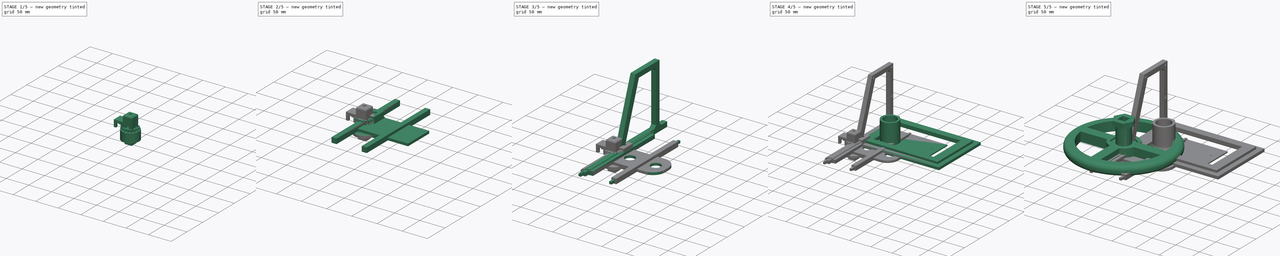
[diagram: build sequence overview — one tinted view per stage of 5, left to right]
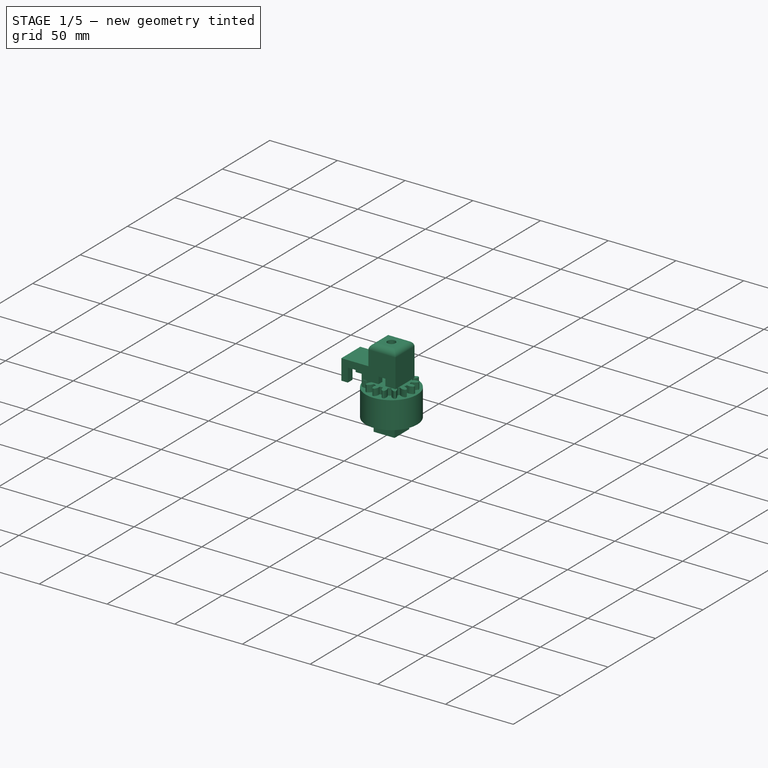
[diagram: stage 1 of 5 — iso view after this stage's code; geometry added in this stage tinted green]
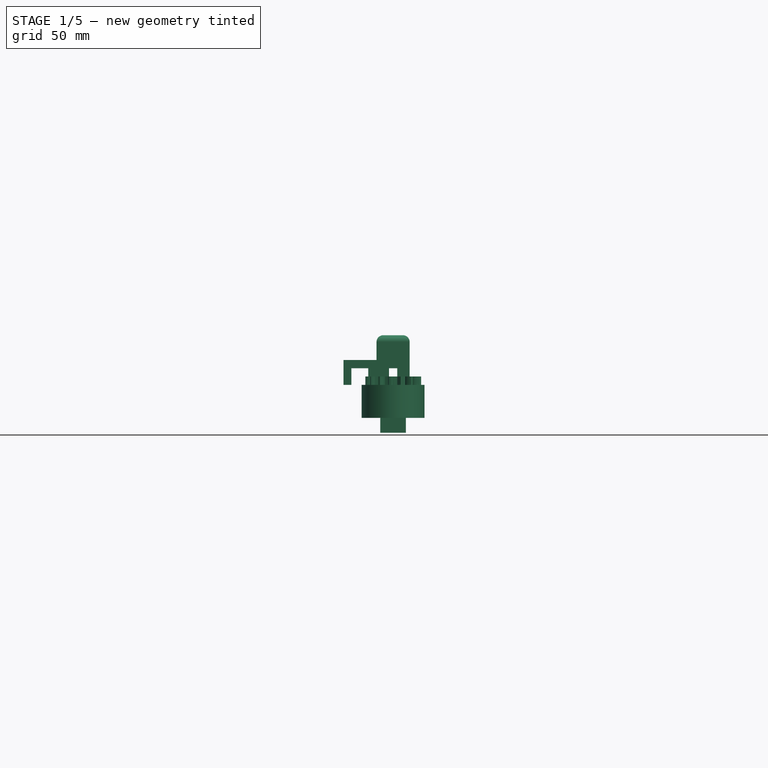
[diagram: stage 1 of 5 — front view after this stage's code; geometry added in this stage tinted green]
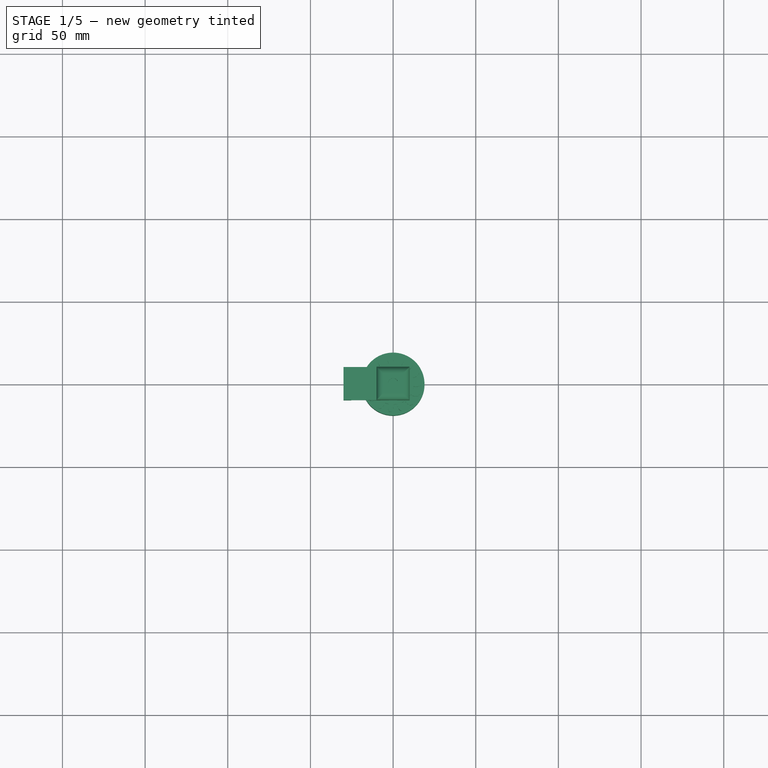
[diagram: stage 1 of 5 — top view after this stage's code; geometry added in this stage tinted green]
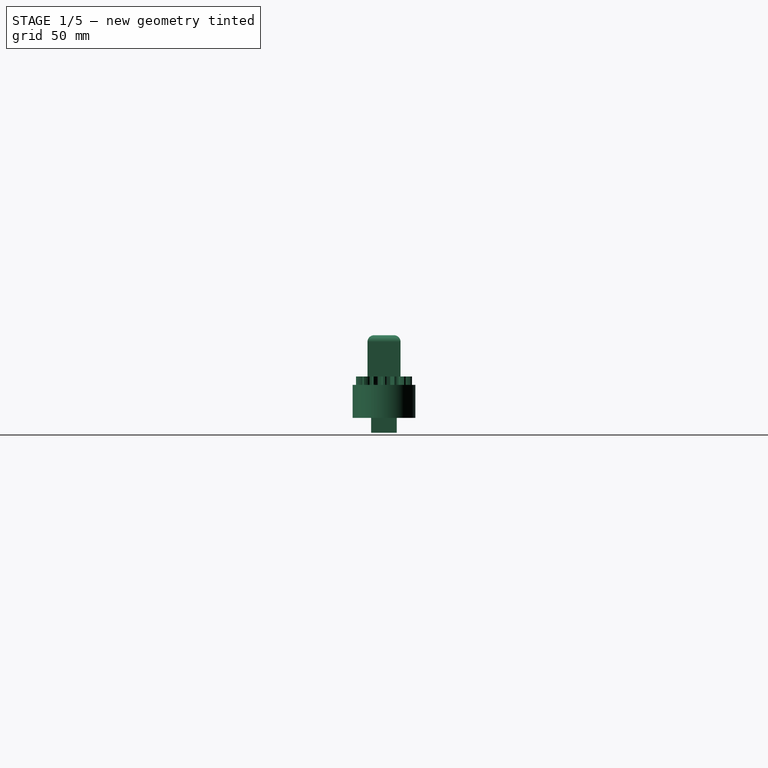
[diagram: stage 1 of 5 — right view after this stage's code; geometry added in this stage tinted green]
FCSTD DOCUMENT  (FreeCAD 0.19R24267 +99 (Git))
Label: Handle2_Assembly
License: All rights reserved
LicenseURL: http://en.wikipedia.org/wiki/All_rights_reserved
objects: Sketcher::SketchObject×53, PartDesign::Pad×27, PartDesign::Pocket×25, PartDesign::Body×14, PartDesign::Fillet×5, PartDesign::Chamfer×2, PartDesign::FeaturePython×2
note: 187 computed .brp shape members not serialized (recipe doc carries the construction recipe); baked Part::Feature solids carry a one-line shape summary decoded from their .brp

FEATURE [PartDesign::Body] Body013  label="Pillar_Middle"
  Group = -> [Sketch041,Sketch040,Sketch039,Pad024,Pad025,Pad026,Sketch042,Pocket015,Fillet002]
  Origin = -> Origin013
  Placement = pos=(75.5,0.18654,-53.141) rot=(-0.497543,0.497543,0.710565;1.90603rad)
  Tip = -> Fillet002
FEATURE [Sketcher::SketchObject] Sketch017  label="Cylinder001"
  FullyConstrained = true
  MapMode = 5
  Support = -> [XY_Plane003]
  sketch-geometry (1):
    g0: Circle CenterX=0 CenterY=0 CenterZ=0 NormalX=0 NormalY=0 NormalZ=1 AngleXU=0 Radius=19
  constraints (2):
    c: Coincident(g0,g-1)
    c: Radius(g0) = 19
FEATURE [Sketcher::SketchObject] Sketch016  label="Square001"
  AttachmentOffset = pos=(0,0,-20) rot=(0,0,1;0rad)
  FullyConstrained = true
  MapMode = 5
  Placement = pos=(0,0,-20) rot=(0,0,1;0rad)
  Support = -> [XY_Plane003]
  sketch-geometry (4):
    g0: LineSegment StartX=-7.75 StartY=7.75 StartZ=0 EndX=7.75 EndY=7.75 EndZ=0
    g1: LineSegment StartX=7.75 StartY=7.75 StartZ=0 EndX=7.75 EndY=-7.75 EndZ=0
    g2: LineSegment StartX=7.75 StartY=-7.75 StartZ=0 EndX=-7.75 EndY=-7.75 EndZ=0
    g3: LineSegment StartX=-7.75 StartY=-7.75 StartZ=0 EndX=-7.75 EndY=7.75 EndZ=0
  constraints (12):
    c: Coincident(g0,g1)
    c: Coincident(g1,g2)
    c: Coincident(g2,g3)
    c: Coincident(g3,g0)
    c: Horizontal(g0)
    c: Horizontal(g2)
    c: Vertical(g1)
    c: Vertical(g3)
    c: DistanceX(g0,g0) = 15.5
    c: DistanceY(g1,g1) = 15.5
    c: DistanceX(g0,g-1) = 7.75
    c: DistanceY(g-1,g0) = 7.75
FEATURE [PartDesign::FeaturePython] involutegear  # WARN: FeaturePython — macro-defined, semantics opaque (R4)
  AttacherType = Attacher::AttachEngine3D
  backlash = 0
  beta = 0
  clearance = 0.25
  da = 34
  df = 25
  double_helix = false
  dw = 30
  head = 0
  height = 5
  module = 2
  numpoints = 6
  pressure_angle = 20
  properties_from_tool = false
  reversed_backlash = false
  shift = 0
  simple = false
  teeth = 15
  transverse_pitch = 6.28319
  undercut = false
  version = 0.0.3
FEATURE [PartDesign::Pad] Pad008
  BaseFeature = -> involutegear
  Direction = (1,1,1)
  Length = 20
  Length2 = 100
  Profile = -> Sketch017
  Refine = true
  Reversed = true
  Type = 0
FEATURE [PartDesign::Pad] Pad007
  BaseFeature = -> Pad008
  Direction = (1,1,1)
  Length = 9
  Length2 = 100
  Profile = -> Sketch016
  Refine = true
  Reversed = true
  Type = 0
FEATURE [PartDesign::Body] Body003  label="OtherEnd"
  Group = -> [Sketch017,Sketch016,involutegear,Pad008,Pad007,Sketch043,Pocket016,Sketch049,Pad029,Fillet003,Sketch050,Pocket020]
  Origin = -> Origin003
  Placement = pos=(50,50,-50) rot=(0,1,0;3.14159rad)
  Tip = -> Pocket020
FEATURE [Sketcher::SketchObject] Sketch051  label="Base001"
  FullyConstrained = true
  MapMode = 5
  Support = -> [XY_Plane016]
  sketch-geometry (4):
    g0: LineSegment StartX=-10 StartY=10 StartZ=0 EndX=10 EndY=10 EndZ=0
    g1: LineSegment StartX=10 StartY=10 StartZ=0 EndX=10 EndY=-10 EndZ=0
    g2: LineSegment StartX=10 StartY=-10 StartZ=0 EndX=-10 EndY=-10 EndZ=0
    g3: LineSegment StartX=-10 StartY=-10 StartZ=0 EndX=-10 EndY=10 EndZ=0
  constraints (12):
    c: Coincident(g0,g1)
    c: Coincident(g1,g2)
    c: Coincident(g2,g3)
    c: Coincident(g3,g0)
    c: Horizontal(g0)
    c: Horizontal(g2)
    c: Vertical(g1)
    c: Vertical(g3)
    c: DistanceX(g0,g0) = 20
    c: DistanceY(g1,g1) = 20
    c: DistanceX(g0,g-1) = 10
    c: DistanceY(g-1,g0) = 10
FEATURE [Sketcher::SketchObject] Sketch052  label="InnerSquare"
  FullyConstrained = true
  MapMode = 5
  Support = -> [XY_Plane016]
  sketch-geometry (4):
    g0: LineSegment StartX=-3.5 StartY=5 StartZ=0 EndX=3.5 EndY=5 EndZ=0
    g1: LineSegment StartX=3.5 StartY=5 StartZ=0 EndX=3.5 EndY=-5 EndZ=0
    g2: LineSegment StartX=3.5 StartY=-5 StartZ=0 EndX=-3.5 EndY=-5 EndZ=0
    g3: LineSegment StartX=-3.5 StartY=-5 StartZ=0 EndX=-3.5 EndY=5 EndZ=0
  constraints (12):
    c: Coincident(g0,g1)
    c: Coincident(g1,g2)
    c: Coincident(g2,g3)
    c: Coincident(g3,g0)
    c: Horizontal(g0)
    c: Horizontal(g2)
    c: Vertical(g1)
    c: Vertical(g3)
    c: DistanceX(g0,g0) = 7
    c: DistanceY(g1,g1) = 10
    c: DistanceY(g-1,g0) = 5
    c: DistanceX(g0,g-1) = 3.5
FEATURE [Sketcher::SketchObject] Sketch053  label="Side"
  FullyConstrained = true
  MapMode = 5
  Placement = pos=(0,0,0) rot=(1,0,0;1.5708rad)
  Support = -> [XZ_Plane016]
  sketch-geometry (4):
    g0: LineSegment StartX=-30 StartY=15 StartZ=0 EndX=10 EndY=15 EndZ=0
    g1: LineSegment StartX=10 StartY=15 StartZ=0 EndX=10 EndY=0 EndZ=0
    g2: LineSegment StartX=10 StartY=0 StartZ=0 EndX=-30 EndY=0 EndZ=0
    g3: LineSegment StartX=-30 StartY=0 StartZ=0 EndX=-30 EndY=15 EndZ=0
  constraints (12):
    c: Coincident(g0,g1)
    c: Coincident(g1,g2)
    c: Coincident(g2,g3)
    c: Coincident(g3,g0)
    c: Horizontal(g0)
    c: Horizontal(g2)
    c: Vertical(g1)
    c: Vertical(g3)
    c: PointOnObject(g1,g-1)
    c: DistanceX(g2,g2) = 40
    c: DistanceY(g1,g1) = 15
    c: DistanceX(g-1,g0) = 10
FEATURE [Sketcher::SketchObject] Sketch054
  FullyConstrained = true
  MapMode = 5
  Support = -> [XY_Plane016]
FEATURE [Sketcher::SketchObject] Sketch055
  FullyConstrained = true
  MapMode = 5
  Placement = pos=(0,0,0) rot=(0.57735,0.57735,0.57735;2.0944rad)
  Support = -> [YZ_Plane016]
  sketch-geometry (4):
    g0: LineSegment StartX=-5 StartY=10 StartZ=0 EndX=5 EndY=10 EndZ=0
    g1: LineSegment StartX=5 StartY=10 StartZ=0 EndX=5 EndY=0 EndZ=0
    g2: LineSegment StartX=5 StartY=0 StartZ=0 EndX=-5 EndY=0 EndZ=0
    g3: LineSegment StartX=-5 StartY=0 StartZ=0 EndX=-5 EndY=10 EndZ=0
  constraints (12):
    c: Coincident(g0,g1)
    c: Coincident(g1,g2)
    c: Coincident(g2,g3)
    c: Coincident(g3,g0)
    c: Horizontal(g0)
    c: Horizontal(g2)
    c: Vertical(g1)
    c: Vertical(g3)
    c: DistanceX(g0,g0) = 10
    c: DistanceX(g2,g-1) = 5
    c: DistanceY(g1,g1) = 10
    c: DistanceY(g-1,g1) = 0
FEATURE [Sketcher::SketchObject] Sketch056  label="Pocket026"
  FullyConstrained = true
  MapMode = 5
  Support = -> [XY_Plane016]
  sketch-geometry (8):
    g0: LineSegment StartX=-25.2 StartY=5.1 StartZ=0 EndX=-30.2 EndY=5.1 EndZ=0
    g1: LineSegment StartX=-30.2 StartY=5.1 StartZ=0 EndX=-30.2 EndY=-5.1 EndZ=0
    g2: LineSegment StartX=-30.2 StartY=-5.1 StartZ=0 EndX=-25.2 EndY=-5.1 EndZ=0
    g3: LineSegment StartX=-25.2 StartY=-5.1 StartZ=0 EndX=-25.2 EndY=-10 EndZ=0
    g4: LineSegment StartX=-25.2 StartY=-10 StartZ=0 EndX=-15 EndY=-10 EndZ=0
    g5: LineSegment StartX=-15 StartY=-10 StartZ=0 EndX=-15 EndY=10 EndZ=0
    g6: LineSegment StartX=-15 StartY=10 StartZ=0 EndX=-25.2 EndY=10 EndZ=0
    g7: LineSegment StartX=-25.2 StartY=10 StartZ=0 EndX=-25.2 EndY=5.1 EndZ=0
  constraints (24):
    c: Horizontal(g0)
    c: Coincident(g0,g1)
    c: Vertical(g1)
    c: Coincident(g1,g2)
    c: Horizontal(g2)
    c: Coincident(g2,g3)
    c: Vertical(g3)
    c: Coincident(g3,g4)
    c: Horizontal(g4)
    c: Coincident(g4,g5)
    c: Vertical(g5)
    c: Coincident(g5,g6)
    c: Horizontal(g6)
    c: Coincident(g6,g7)
    c: Coincident(g7,g0)
    c: Vertical(g7)
    c: DistanceY(g1,g1) = 10.2
    c: DistanceX(g6,g6) = 10.2
    c: DistanceX(g0,g2) = 0
    c: DistanceX(g5,g-1) = 15
    c: DistanceX(g0,g0) = 5
    c: DistanceY(g-1,g0) = 5.1
    c: DistanceY(g-1,g5) = 10
    c: DistanceY(g5,g5) = 20
FEATURE [Sketcher::SketchObject] Sketch008
  FullyConstrained = true
  MapMode = 5
  Support = -> [XY_Plane016]
  sketch-geometry (4):
    g0: LineSegment StartX=-6 StartY=6 StartZ=0 EndX=6 EndY=6 EndZ=0
    g1: LineSegment StartX=6 StartY=6 StartZ=0 EndX=6 EndY=-6 EndZ=0
    g2: LineSegment StartX=6 StartY=-6 StartZ=0 EndX=-6 EndY=-6 EndZ=0
    g3: LineSegment StartX=-6 StartY=-6 StartZ=0 EndX=-6 EndY=6 EndZ=0
  constraints (12):
    c: Coincident(g0,g1)
    c: Coincident(g1,g2)
    c: Coincident(g2,g3)
    c: Coincident(g3,g0)
    c: Horizontal(g0)
    c: Horizontal(g2)
    c: Vertical(g1)
    c: Vertical(g3)
    c: DistanceY(g1,g1) = 12
    c: DistanceX(g0,g0) = 12
    c: DistanceY(g-1,g0) = 6
    c: DistanceX(g-1,g0) = 6
FEATURE [Sketcher::SketchObject] Sketch057
  FullyConstrained = true
  MapMode = 5
  Placement = pos=(0,0,0) rot=(1,0,0;1.5708rad)
  Support = -> [XZ_Plane016]
  sketch-geometry (4):
    g0: LineSegment StartX=-2.5 StartY=10 StartZ=0 EndX=2.5 EndY=10 EndZ=0
    g1: LineSegment StartX=2.5 StartY=10 StartZ=0 EndX=2.5 EndY=5 EndZ=0
    g2: LineSegment StartX=2.5 StartY=5 StartZ=0 EndX=-2.5 EndY=5 EndZ=0
    g3: LineSegment StartX=-2.5 StartY=5 StartZ=0 EndX=-2.5 EndY=10 EndZ=0
  constraints (12):
    c: Coincident(g0,g1)
    c: Coincident(g1,g2)
    c: Coincident(g2,g3)
    c: Coincident(g3,g0)
    c: Horizontal(g0)
    c: Horizontal(g2)
    c: Vertical(g1)
    c: Vertical(g3)
    c: DistanceX(g0,g0) = 5
    c: DistanceY(g1,g1) = 5
    c: DistanceX(g0,g-1) = 2.5
    c: DistanceY(g-1,g1) = 5
FEATURE [PartDesign::Pad] Pad031
  Direction = (1,1,1)
  Length = 20
  Length2 = 100
  Midplane = true
  Placement = pos=(0,0,0) rot=(1,0,0;1.5708rad)
  Profile = -> Sketch053
  Type = 0
FEATURE [PartDesign::Pocket] Pocket022
  BaseFeature = -> Pad031
  Length = 10
  Length2 = 100
  Placement = pos=(0,0,0) rot=(1,0,0;1.5708rad)
  Profile = -> Sketch056
  Reversed = true
  Type = 0
FEATURE [PartDesign::Pad] Pad030
  BaseFeature = -> Pocket022
  Direction = (1,1,1)
  Length = 30
  Length2 = 100
  Placement = pos=(0,0,0) rot=(1,0,0;1.5708rad)
  Profile = -> Sketch051
  Type = 0
FEATURE [Sketcher::SketchObject] Sketch058  label="Circle"
  FullyConstrained = true
  MapMode = 5
  Support = -> [XY_Plane016]
  sketch-geometry (1):
    g0: Circle CenterX=0 CenterY=0 CenterZ=0 NormalX=0 NormalY=0 NormalZ=1 AngleXU=0 Radius=3
  constraints (2):
    c: Coincident(g0,g-1)
    c: Radius(g0) = 3
FEATURE [PartDesign::Pocket] Pocket023
  BaseFeature = -> Pad030
  Length = 500
  Length2 = 100
  Midplane = true
  Placement = pos=(0,0,0) rot=(1,0,0;1.5708rad)
  Profile = -> Sketch058
  Type = 0
FEATURE [PartDesign::Pocket] Pocket024
  BaseFeature = -> Pocket023
  Length = 27
  Length2 = 100
  Placement = pos=(0,0,0) rot=(1,0,0;1.5708rad)
  Profile = -> Sketch052
  Reversed = true
  Type = 0
FEATURE [PartDesign::Pocket] Pocket021
  BaseFeature = -> Pocket024
  Length = 20
  Length2 = 100
  Placement = pos=(0,0,0) rot=(1,0,0;1.5708rad)
  Profile = -> Sketch055
  Type = 0
FEATURE [PartDesign::Fillet] Fillet004
  Base = -> Pocket021 [Edge49,Edge48,Edge13,Edge47]
  BaseFeature = -> Pocket021
  Placement = pos=(0,0,0) rot=(1,0,0;1.5708rad)
  Radius = 4
  SupportTransform = false
FEATURE [PartDesign::Pocket] Pocket025  label="Pocket005"
  BaseFeature = -> Fillet004
  Length = 50
  Length2 = 100
  Midplane = true
  Placement = pos=(0,0,0) rot=(1,0,0;1.5708rad)
  Profile = -> Sketch057
  Type = 0
FEATURE [PartDesign::Pocket] Pocket005  label="Pocket025"
  BaseFeature = -> Pocket025
  Length = 35
  Length2 = 100
  Midplane = true
  Placement = pos=(0,0,0) rot=(1,0,0;1.5708rad)
  Profile = -> Sketch008
  Type = 0
FEATURE [PartDesign::Body] Body016  label="GearHolder"
  Group = -> [Sketch058,Sketch051,Sketch052,Sketch054,Sketch053,Sketch056,Pad031,Pocket022,Pad030,Pocket023,Pocket024,Sketch055,Pocket021,Fillet004,Sketch057,Pocket025,Sketch008,Pocket005]
  Origin = -> Origin016
  Placement = pos=(191,-1.47858,-56.3011) rot=(1,0,0;4.97419rad)
  Tip = -> Pocket005
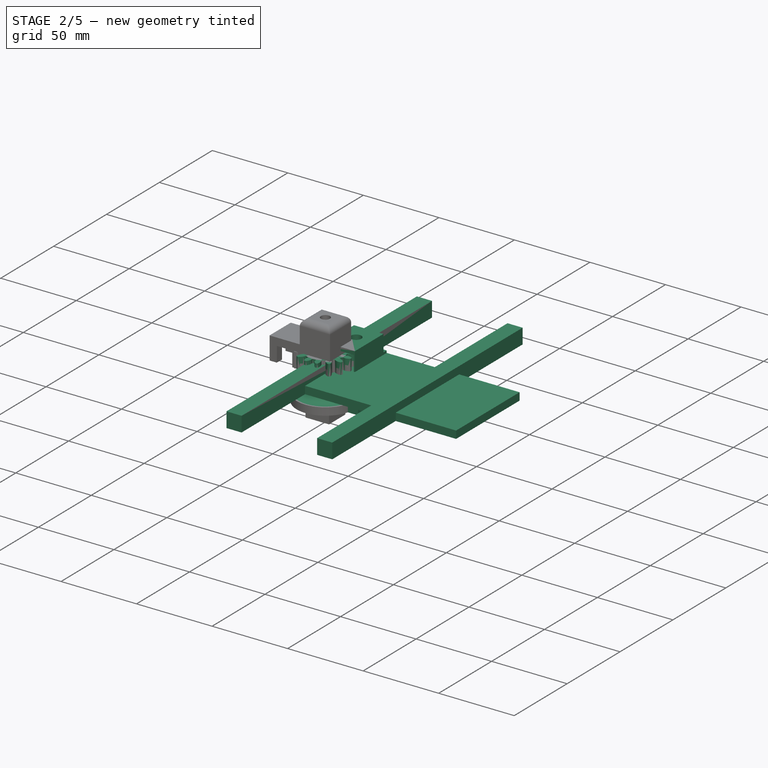
[diagram: stage 2 of 5 — iso view after this stage's code; geometry added in this stage tinted green]
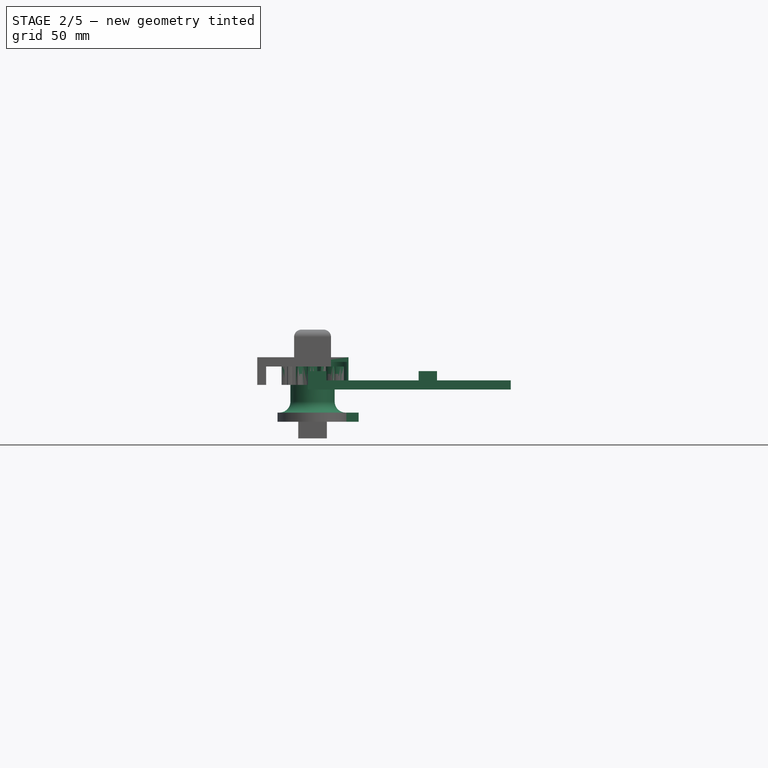
[diagram: stage 2 of 5 — front view after this stage's code; geometry added in this stage tinted green]
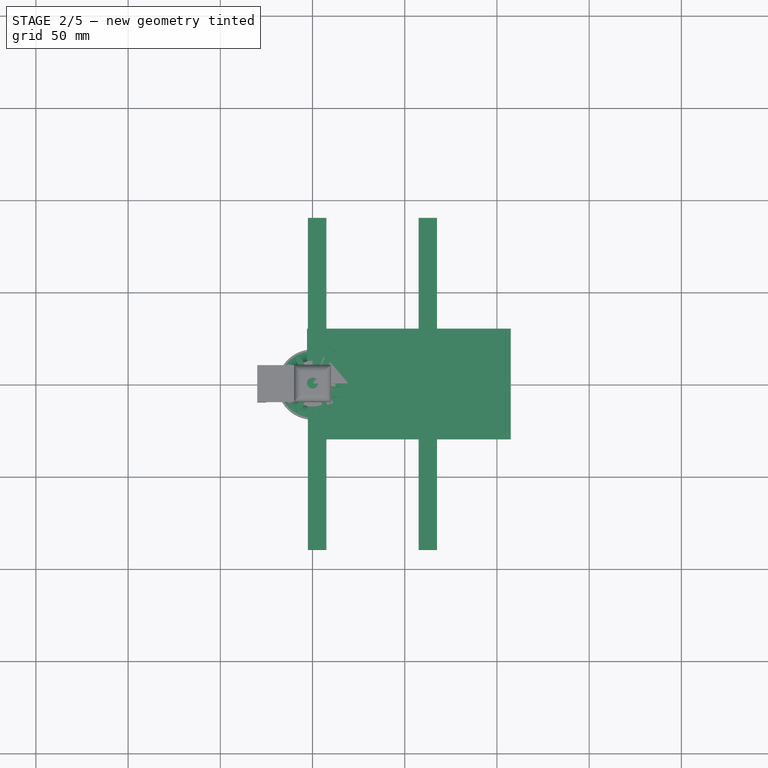
[diagram: stage 2 of 5 — top view after this stage's code; geometry added in this stage tinted green]
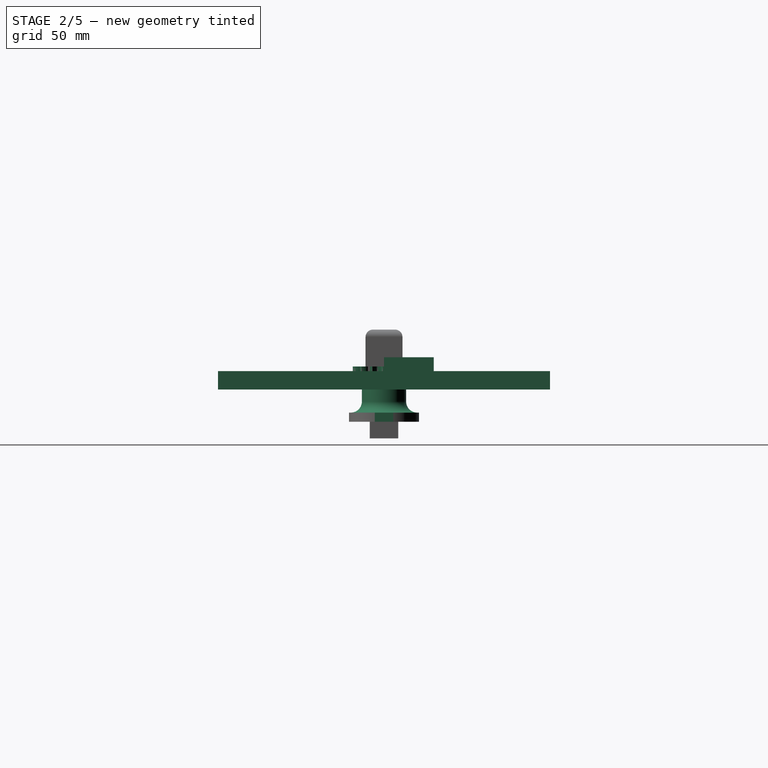
[diagram: stage 2 of 5 — right view after this stage's code; geometry added in this stage tinted green]
FEATURE [PartDesign::Body] Body012  label="SideFrame_2"
  Group = -> [Sketch038,Sketch037,Pad023,Pocket014,Chamfer001]
  Origin = -> Origin012
  Placement = pos=(166,-19.7315,-6.86494) rot=(-1,0,0;1.22173rad)
  Tip = -> Chamfer001
FEATURE [Sketcher::SketchObject] Sketch039
  AttachmentOffset = pos=(0,0,-2.5) rot=(0,0,1;0rad)
  FullyConstrained = true
  MapMode = 5
  Placement = pos=(0,0,-2.5) rot=(0,0,1;0rad)
  Support = -> [XY_Plane013]
  sketch-geometry (4):
    g0: LineSegment StartX=-2.5 StartY=30 StartZ=0 EndX=107.5 EndY=30 EndZ=0
    g1: LineSegment StartX=107.5 StartY=30 StartZ=0 EndX=107.5 EndY=-30 EndZ=0
    g2: LineSegment StartX=107.5 StartY=-30 StartZ=0 EndX=-2.5 EndY=-30 EndZ=0
    g3: LineSegment StartX=-2.5 StartY=-30 StartZ=0 EndX=-2.5 EndY=30 EndZ=0
  constraints (12):
    c: Coincident(g0,g1)
    c: Coincident(g1,g2)
    c: Coincident(g2,g3)
    c: Coincident(g3,g0)
    c: Horizontal(g0)
    c: Horizontal(g2)
    c: Vertical(g1)
    c: Vertical(g3)
    c: DistanceX(g0,g0) = 110
    c: DistanceY(g1,g1) = 60
    c: DistanceY(g-1,g0) = 30
    c: DistanceX(g0,g-1) = 2.5
FEATURE [Sketcher::SketchObject] Sketch040
  FullyConstrained = true
  MapMode = 5
  Placement = pos=(0,0,0) rot=(1,0,0;1.5708rad)
  Support = -> [XZ_Plane013]
  sketch-geometry (8):
    g0: LineSegment StartX=-2.5 StartY=7.5 StartZ=0 EndX=7.5 EndY=7.5 EndZ=0
    g1: LineSegment StartX=7.5 StartY=7.5 StartZ=0 EndX=7.5 EndY=-2.5 EndZ=0
    g2: LineSegment StartX=7.5 StartY=-2.5 StartZ=0 EndX=-2.5 EndY=-2.5 EndZ=0
    g3: LineSegment StartX=-2.5 StartY=-2.5 StartZ=0 EndX=-2.5 EndY=7.5 EndZ=0
    g4: LineSegment StartX=57.5 StartY=7.5 StartZ=0 EndX=67.5 EndY=7.5 EndZ=0
    g5: LineSegment StartX=67.5 StartY=7.5 StartZ=0 EndX=67.5 EndY=-2.5 EndZ=0
    g6: LineSegment StartX=67.5 StartY=-2.5 StartZ=0 EndX=57.5 EndY=-2.5 EndZ=0
    g7: LineSegment StartX=57.5 StartY=-2.5 StartZ=0 EndX=57.5 EndY=7.5 EndZ=0
  constraints (24):
    c: Coincident(g0,g1)
    c: Coincident(g1,g2)
    c: Coincident(g2,g3)
    c: Coincident(g3,g0)
    c: Horizontal(g0)
    c: Horizontal(g2)
    c: Vertical(g1)
    c: Vertical(g3)
    c: Coincident(g4,g5)
    c: Coincident(g5,g6)
    c: Coincident(g6,g7)
    c: Coincident(g7,g4)
    c: Horizontal(g4)
    c: Horizontal(g6)
    c: Vertical(g5)
    c: Vertical(g7)
    c: DistanceX(g0,g0) = 10
    c: DistanceX(g4,g4) = 10
    c: DistanceY(g1,g1) = 10
    c: DistanceY(g5,g5) = 10
    c: DistanceY(g-1,g0) = 7.5
    c: DistanceX(g0,g4) = 60
    c: DistanceY(g4,g0) = 0
    c: DistanceX(g2,g-1) = 2.5
FEATURE [PartDesign::Pad] Pad024
  Direction = (1,1,1)
  Length = 5
  Length2 = 100
  Profile = -> Sketch039
  Type = 0
FEATURE [PartDesign::Pad] Pad025
  BaseFeature = -> Pad024
  Direction = (1,1,1)
  Length = 180
  Length2 = 100
  Midplane = true
  Profile = -> Sketch040
  Type = 0
FEATURE [Sketcher::SketchObject] Sketch043
  FullyConstrained = true
  MapMode = 5
  Support = -> [XY_Plane003]
  sketch-geometry (2):
    g0: Circle CenterX=0 CenterY=0 CenterZ=0 NormalX=0 NormalY=0 NormalZ=1 AngleXU=0 Radius=12
    g1: Circle CenterX=0 CenterY=0 CenterZ=0 NormalX=0 NormalY=0 NormalZ=1 AngleXU=0 Radius=30
  constraints (4):
    c: Coincident(g0,g-1)
    c: Radius(g0) = 12
    c: Coincident(g1,g0)
    c: Radius(g1) = 30
FEATURE [PartDesign::Pocket] Pocket016
  BaseFeature = -> Pad007
  Length = 15
  Length2 = 100
  Profile = -> Sketch043
  Type = 0
FEATURE [Sketcher::SketchObject] Sketch044
  FullyConstrained = true
  MapMode = 5
  Support = -> [XY_Plane014]
  sketch-geometry (1):
    g0: Circle CenterX=0 CenterY=0 CenterZ=0 NormalX=0 NormalY=0 NormalZ=1 AngleXU=0 Radius=3.1
  constraints (2):
    c: Coincident(g0,g-1)
    c: Radius(g0) = 3.1
FEATURE [PartDesign::FeaturePython] involutegear002  # WARN: FeaturePython — macro-defined, semantics opaque (R4)
  AttacherType = Attacher::AttachEngine3D
  backlash = 0
  beta = 0
  clearance = 0.25
  da = 34
  df = 25
  double_helix = false
  dw = 30
  head = 0
  height = 10
  module = 2
  numpoints = 6
  pressure_angle = 20
  properties_from_tool = false
  reversed_backlash = false
  shift = 0
  simple = false
  teeth = 15
  transverse_pitch = 6.28319
  undercut = false
  version = 0.0.3
FEATURE [PartDesign::Pocket] Pocket017
  BaseFeature = -> involutegear002
  Length = 20
  Length2 = 100
  Midplane = true
  Profile = -> Sketch044
  Refine = true
  Type = 0
FEATURE [PartDesign::Body] Body014  label="Encoder_Gear001"
  Group = -> [Sketch044,involutegear002,Pocket017]
  Origin = -> Origin014
  Placement = pos=(50.517,80.3706,-28.5) rot=(0,0,1;0.785398rad)
  Tip = -> Pocket017
FEATURE [Sketcher::SketchObject] Sketch045  label="Pad1"
  FullyConstrained = true
  MapMode = 5
  Support = -> [XY_Plane015]
  sketch-geometry (4):
    g0: ArcOfCircle CenterX=9.75 CenterY=15 CenterZ=0 NormalX=0 NormalY=0 NormalZ=1 AngleXU=0 Radius=9 StartAngle=0 EndAngle=3.14159
    g1: LineSegment StartX=0.75 StartY=0 StartZ=0 EndX=18.75 EndY=0 EndZ=0
    g2: LineSegment StartX=18.75 StartY=0 StartZ=0 EndX=18.75 EndY=15 EndZ=0
    g3: LineSegment StartX=0.75 StartY=15 StartZ=0 EndX=0.75 EndY=0 EndZ=0
  constraints (13):
    c: DistanceX(g-1,g0) = 9.75
    c: DistanceY(g-1,g0) = 15
    c: Coincident(g1,g2)
    c: Coincident(g3,g1)
    c: Horizontal(g1)
    c: Vertical(g2)
    c: Vertical(g3)
    c: PointOnObject(g1,g-1)
    c: Coincident(g0,g2)
    c: Radius(g0) = 9
    c: Coincident(g0,g3)
    c: DistanceX(g1,g1) = 18
    c: DistanceY(g2,g2) = 15
FEATURE [Sketcher::SketchObject] Sketch046  label="Hole002"
  FullyConstrained = true
  MapMode = 5
  Support = -> [XY_Plane015]
  sketch-geometry (1):
    g0: Circle CenterX=9.75 CenterY=15 CenterZ=0 NormalX=0 NormalY=0 NormalZ=1 AngleXU=0 Radius=3.5
  constraints (3):
    c: Radius(g0) = 3.5
    c: DistanceX(g-1,g0) = 9.75
    c: DistanceY(g-1,g0) = 15
FEATURE [Sketcher::SketchObject] Sketch047  label="Base"
  FullyConstrained = true
  MapMode = 5
  Support = -> [XY_Plane015]
  sketch-geometry (4):
    g0: LineSegment StartX=0 StartY=0 StartZ=0 EndX=19.5 EndY=0 EndZ=0
    g1: LineSegment StartX=19.5 StartY=0 StartZ=0 EndX=19.5 EndY=27 EndZ=0
    g2: LineSegment StartX=19.5 StartY=27 StartZ=0 EndX=0 EndY=27 EndZ=0
    g3: LineSegment StartX=0 StartY=27 StartZ=0 EndX=0 EndY=0 EndZ=0
  constraints (11):
    c: Coincident(g0,g1)
    c: Coincident(g1,g2)
    c: Coincident(g2,g3)
    c: Coincident(g3,g0)
    c: Horizontal(g0)
    c: Horizontal(g2)
    c: Vertical(g1)
    c: Vertical(g3)
    c: Coincident(g0,g-1)
    c: DistanceX(g2,g2) = 19.5
    c: DistanceY(g1,g1) = 27
FEATURE [PartDesign::Pad] Pad028
  Direction = (1,1,1)
  Length = 15
  Length2 = 100
  Profile = -> Sketch047
  Type = 0
FEATURE [Sketcher::SketchObject] Sketch048
  AttachmentOffset = pos=(0,0,2) rot=(0,0,1;0rad)
  FullyConstrained = true
  MapMode = 5
  Placement = pos=(0,0,2) rot=(0,0,1;0rad)
  Support = -> [XY_Plane015]
  sketch-geometry (4):
    g0: LineSegment StartX=-3 StartY=0 StartZ=0 EndX=19.5 EndY=0 EndZ=0
    g1: LineSegment StartX=19.5 StartY=0 StartZ=0 EndX=19.5 EndY=30 EndZ=0
    g2: LineSegment StartX=19.5 StartY=30 StartZ=0 EndX=-3 EndY=30 EndZ=0
    g3: LineSegment StartX=-3 StartY=30 StartZ=0 EndX=-3 EndY=0 EndZ=0
  constraints (12):
    c: Coincident(g0,g1)
    c: Coincident(g1,g2)
    c: Coincident(g2,g3)
    c: Coincident(g3,g0)
    c: Horizontal(g0)
    c: Horizontal(g2)
    c: Vertical(g1)
    c: Vertical(g3)
    c: DistanceY(g3,g3) = 30
    c: DistanceY(g-1,g2) = 30
    c: DistanceX(g2,g2) = 22.5
    c: DistanceX(g2,g-1) = 3
FEATURE [PartDesign::Pad] Pad027
  BaseFeature = -> Pad028
  Direction = (1,1,1)
  Length = 2
  Length2 = 100
  Profile = -> Sketch048
  Type = 0
FEATURE [PartDesign::Pocket] Pocket019
  BaseFeature = -> Pad027
  Length = 12.5
  Length2 = 100
  Profile = -> Sketch045
  Reversed = true
  Type = 0
FEATURE [PartDesign::Pocket] Pocket018
  BaseFeature = -> Pocket019
  Length = 100
  Length2 = 100
  Midplane = true
  Profile = -> Sketch046
  Type = 0
FEATURE [PartDesign::Body] Body015  label="PotentometerHolder"
  Group = -> [Sketch047,Sketch045,Sketch046,Pad028,Sketch048,Pad027,Pocket019,Pocket018]
  Origin = -> Origin015
  Placement = pos=(65.5,90.0926,-0.881905) rot=(0.707107,-0.707107,0;3.14159rad)
  Tip = -> Pocket018
FEATURE [Sketcher::SketchObject] Sketch049
  AttachmentOffset = pos=(0,0,-20) rot=(0,0,1;0rad)
  FullyConstrained = true
  MapMode = 5
  Placement = pos=(0,0,-20) rot=(0,0,1;0rad)
  Support = -> [XY_Plane003]
  sketch-geometry (4):
    g0: LineSegment StartX=0 StartY=5 StartZ=0 EndX=25 EndY=5 EndZ=0
    g1: LineSegment StartX=25 StartY=5 StartZ=0 EndX=25 EndY=-5 EndZ=0
    g2: LineSegment StartX=25 StartY=-5 StartZ=0 EndX=0 EndY=-5 EndZ=0
    g3: LineSegment StartX=0 StartY=-5 StartZ=0 EndX=0 EndY=5 EndZ=0
  constraints (12):
    c: Coincident(g0,g1)
    c: Coincident(g1,g2)
    c: Coincident(g2,g3)
    c: Coincident(g3,g0)
    c: Horizontal(g0)
    c: Horizontal(g2)
    c: Vertical(g1)
    c: Vertical(g3)
    c: PointOnObject(g0,g-2)
    c: DistanceY(g1,g1) = 10
    c: DistanceY(g-1,g0) = 5
    c: DistanceX(g0,g0) = 25
FEATURE [PartDesign::Pad] Pad029
  BaseFeature = -> Pocket016
  Direction = (1,1,1)
  Length = 5
  Length2 = 100
  Profile = -> Sketch049
  Type = 0
FEATURE [PartDesign::Fillet] Fillet003
  Base = -> Pad029 [Edge34]
  BaseFeature = -> Pad029
  Radius = 6
  SupportTransform = false
FEATURE [Sketcher::SketchObject] Sketch050
  AttachmentOffset = pos=(0,0,-10) rot=(0,0,1;0rad)
  FullyConstrained = true
  MapMode = 5
  Placement = pos=(0,0,-10) rot=(0,0,1;0rad)
  Support = -> [XY_Plane003]
  sketch-geometry (4):
    g0: LineSegment StartX=-5 StartY=5 StartZ=0 EndX=5 EndY=5 EndZ=0
    g1: LineSegment StartX=5 StartY=5 StartZ=0 EndX=5 EndY=-5 EndZ=0
    g2: LineSegment StartX=5 StartY=-5 StartZ=0 EndX=-5 EndY=-5 EndZ=0
    g3: LineSegment StartX=-5 StartY=-5 StartZ=0 EndX=-5 EndY=5 EndZ=0
  constraints (12):
    c: Coincident(g0,g1)
    c: Coincident(g1,g2)
    c: Coincident(g2,g3)
    c: Coincident(g3,g0)
    c: Horizontal(g0)
    c: Horizontal(g2)
    c: Vertical(g1)
    c: Vertical(g3)
    c: DistanceX(g0,g0) = 10
    c: DistanceY(g1,g1) = 10
    c: DistanceX(g-1,g0) = 5
    c: DistanceY(g-1,g0) = 5
FEATURE [PartDesign::Pocket] Pocket020
  BaseFeature = -> Fillet003
  Length = 30
  Length2 = 100
  Profile = -> Sketch050
  Reversed = true
  Type = 0
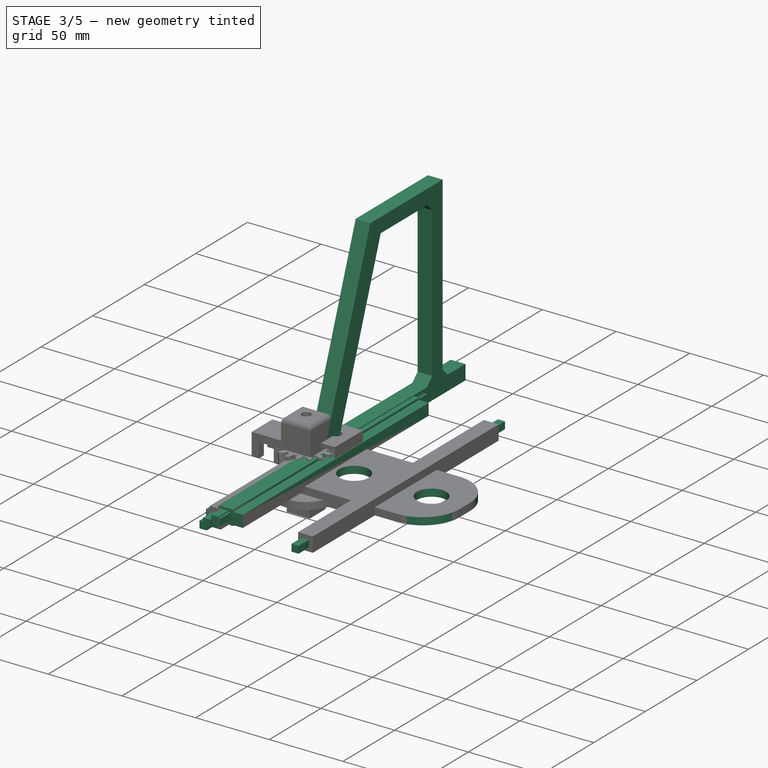
[diagram: stage 3 of 5 — iso view after this stage's code; geometry added in this stage tinted green]
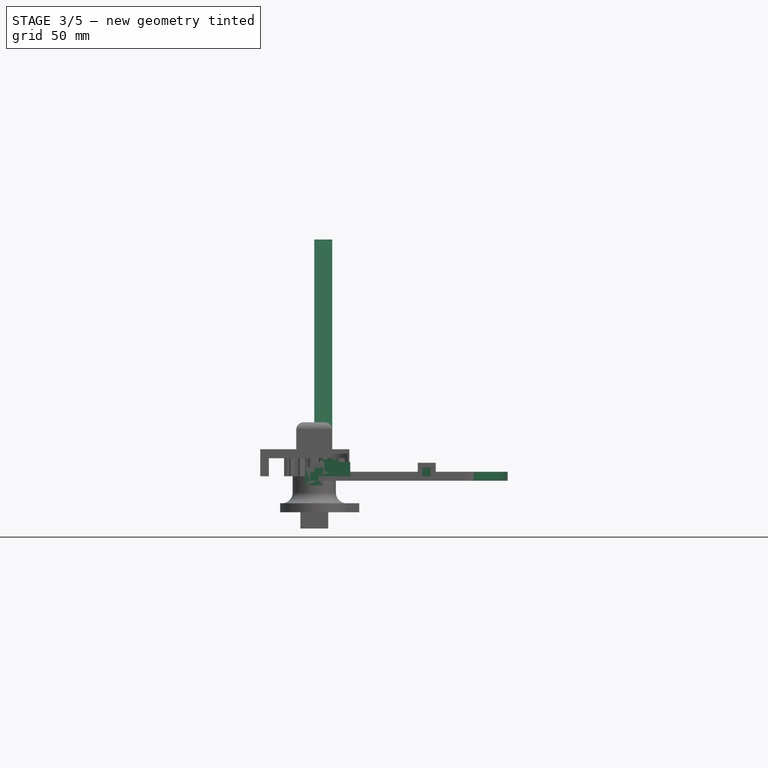
[diagram: stage 3 of 5 — front view after this stage's code; geometry added in this stage tinted green]
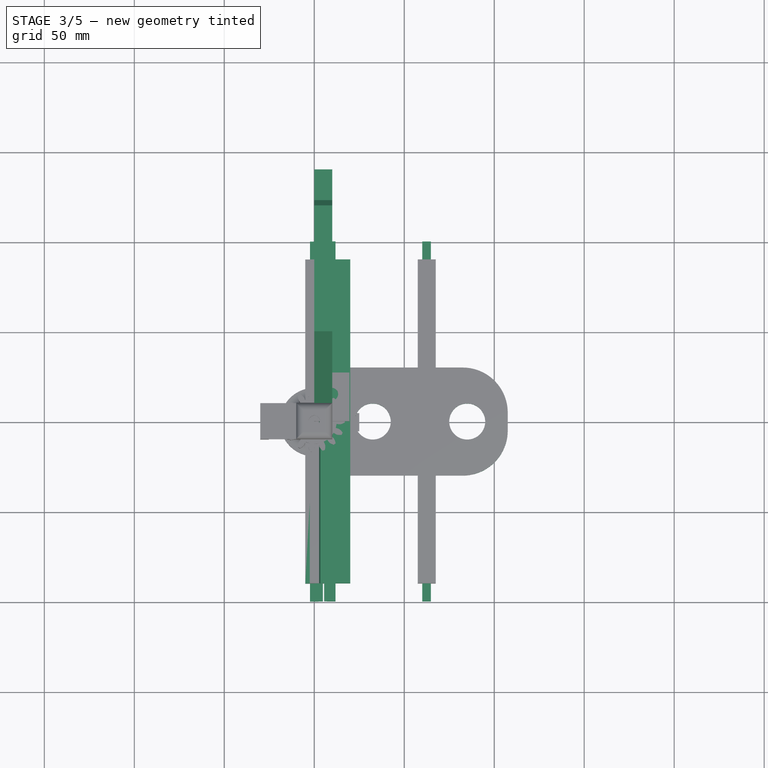
[diagram: stage 3 of 5 — top view after this stage's code; geometry added in this stage tinted green]
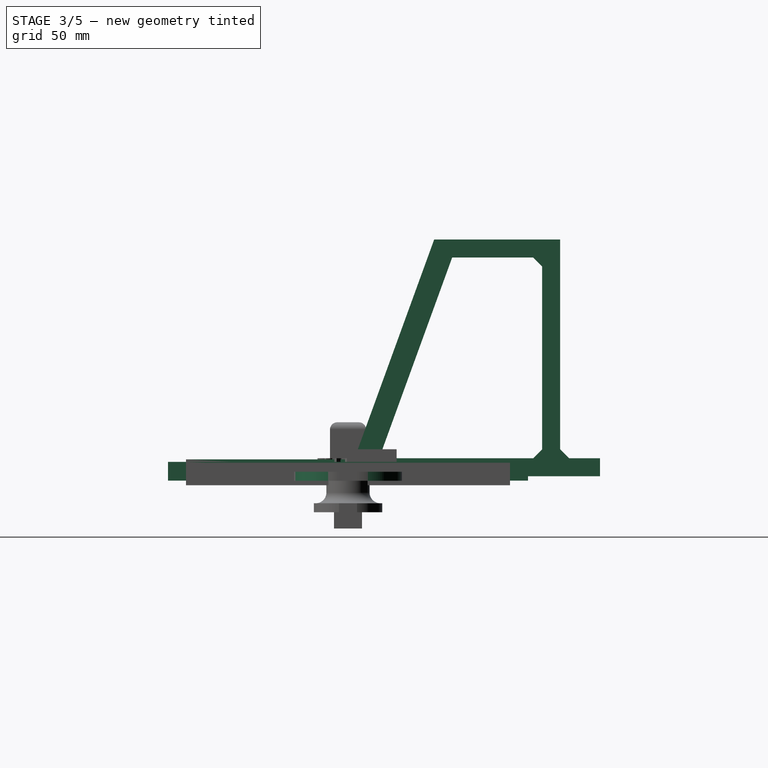
[diagram: stage 3 of 5 — right view after this stage's code; geometry added in this stage tinted green]
FEATURE [PartDesign::Body] Body007  label="OuterFrame"
  Group = -> [Sketch028,Sketch026,Sketch027,Sketch025,Pad014,Pad015,Pocket012,Pocket011]
  Origin = -> Origin007
  Placement = pos=(175.5,-20,-0.5) rot=(0,1,0;3.14159rad)
  Tip = -> Pocket011
FEATURE [Sketcher::SketchObject] Sketch029  label="Hole"
  FullyConstrained = true
  MapMode = 5
  Placement = pos=(0,0,0) rot=(0.57735,0.57735,0.57735;2.0944rad)
  Support = -> [YZ_Plane008]
  sketch-geometry (24):
    g0: LineSegment StartX=110 StartY=7.5 StartZ=0 EndX=115 EndY=7.5 EndZ=0
    g1: LineSegment StartX=115 StartY=7.5 StartZ=0 EndX=115 EndY=2.5 EndZ=0
    g2: LineSegment StartX=115 StartY=2.5 StartZ=0 EndX=110 EndY=2.5 EndZ=0
    g3: LineSegment StartX=110 StartY=2.5 StartZ=0 EndX=110 EndY=7.5 EndZ=0
    g4: LineSegment StartX=7 StartY=7.5 StartZ=0 EndX=12 EndY=7.5 EndZ=0
    g5: LineSegment StartX=12 StartY=7.5 StartZ=0 EndX=12 EndY=2.5 EndZ=0
    g6: LineSegment StartX=12 StartY=2.5 StartZ=0 EndX=7 EndY=2.5 EndZ=0
    g7: LineSegment StartX=7 StartY=2.5 StartZ=0 EndX=7 EndY=7.5 EndZ=0
    g8: LineSegment StartX=50 StartY=129.06 StartZ=0 EndX=55 EndY=129.06 EndZ=0
    g9: LineSegment StartX=55 StartY=129.06 StartZ=0 EndX=55 EndY=124.06 EndZ=0
    g10: LineSegment StartX=55 StartY=124.06 StartZ=0 EndX=50 EndY=124.06 EndZ=0
    g11: LineSegment StartX=50 StartY=124.06 StartZ=0 EndX=50 EndY=129.06 EndZ=0
    g12: LineSegment StartX=110 StartY=129.06 StartZ=0 EndX=115 EndY=129.06 EndZ=0
    g13: LineSegment StartX=115 StartY=129.06 StartZ=0 EndX=115 EndY=124.06 EndZ=0
    g14: LineSegment StartX=115 StartY=124.06 StartZ=0 EndX=110 EndY=124.06 EndZ=0
    g15: LineSegment StartX=110 StartY=124.06 StartZ=0 EndX=110 EndY=129.06 EndZ=0
    g16: LineSegment StartX=50 StartY=7.5 StartZ=0 EndX=55 EndY=7.5 EndZ=0
    g17: LineSegment StartX=55 StartY=7.5 StartZ=0 EndX=55 EndY=2.5 EndZ=0
    g18: LineSegment StartX=55 StartY=2.5 StartZ=0 EndX=50 EndY=2.5 EndZ=0
    g19: LineSegment StartX=50 StartY=2.5 StartZ=0 EndX=50 EndY=7.5 EndZ=0
    g20: LineSegment StartX=110 StartY=67.5 StartZ=0 EndX=115 EndY=67.5 EndZ=0
    g21: LineSegment StartX=115 StartY=67.5 StartZ=0 EndX=115 EndY=62.5 EndZ=0
    g22: LineSegment StartX=115 StartY=62.5 StartZ=0 EndX=110 EndY=62.5 EndZ=0
    g23: LineSegment StartX=110 StartY=62.5 StartZ=0 EndX=110 EndY=67.5 EndZ=0
  constraints (72):
    c: Coincident(g0,g1)
    c: Coincident(g1,g2)
    c: Coincident(g2,g3)
    c: Coincident(g3,g0)
    c: Horizontal(g0)
    c: Horizontal(g2)
    c: Vertical(g1)
    c: Vertical(g3)
    c: Coincident(g4,g5)
    c: Coincident(g5,g6)
    c: Coincident(g6,g7)
    c: Coincident(g7,g4)
    c: Horizontal(g4)
    c: Horizontal(g6)
    c: Vertical(g5)
    c: Vertical(g7)
    c: Coincident(g8,g9)
    c: Coincident(g9,g10)
    c: Coincident(g10,g11)
    c: Coincident(g11,g8)
    c: Horizontal(g8)
    c: Horizontal(g10)
    c: Vertical(g9)
    c: Vertical(g11)
    c: Coincident(g12,g13)
    c: Coincident(g13,g14)
    c: Coincident(g14,g15)
    c: Coincident(g15,g12)
    c: Horizontal(g12)
    c: Horizontal(g14)
    c: Vertical(g13)
    c: Vertical(g15)
    c: DistanceY(g13,g13) = 5
    c: DistanceX(g12,g12) = 5
    c: DistanceX(g8,g8) = 5
    c: DistanceX(g0,g0) = 5
    c: DistanceX(g4,g4) = 5
    c: DistanceY(g11,g11) = 5
    c: DistanceY(g5,g5) = 5
    c: DistanceY(g1,g1) = 5
    c: DistanceY(g2,g5) = 0
    c: DistanceY(g-1,g6) = 2.5
    c: DistanceY(g9,g14) = 0
    c: DistanceX(g13,g0) = 0
    c: DistanceX(g-1,g6) = 7
    c: DistanceX(g6,g2) = 103
    c: DistanceY(g2,g14) = 121.56
    c: DistanceX(g8,g12) = 60
    c: Coincident(g16,g17)
    c: Coincident(g17,g18)
    c: Coincident(g18,g19)
    c: Coincident(g19,g16)
    c: Horizontal(g16)
    c: Horizontal(g18)
    c: Vertical(g17)
    c: Vertical(g19)
    c: DistanceY(g17,g17) = 5
    c: DistanceX(g18,g18) = 5
    c: DistanceY(g1,g17) = 0
    c: DistanceX(g18) = 50
    c: Coincident(g20,g21)
    c: Coincident(g21,g22)
    c: Coincident(g22,g23)
    c: Coincident(g23,g20)
    c: Horizontal(g20)
    c: Horizontal(g22)
    c: Vertical(g21)
    c: Vertical(g23)
    c: DistanceX(g20,g20) = 5
    c: DistanceY(g21,g21) = 5
    c: DistanceX(g22,g0) = 0
    c: DistanceY(g2,g22) = 60
FEATURE [Sketcher::SketchObject] Sketch030  label="MainFrame"
  FullyConstrained = true
  MapMode = 5
  Placement = pos=(0,0,0) rot=(0.57735,0.57735,0.57735;2.0944rad)
  Support = -> [YZ_Plane008]
  sketch-geometry (10):
    g0: LineSegment StartX=0 StartY=0 StartZ=0 EndX=47.8828 EndY=131.557 EndZ=0
    g1: LineSegment StartX=47.8828 StartY=131.557 StartZ=0 EndX=117.883 EndY=131.557 EndZ=0
    g2: LineSegment StartX=117.883 StartY=131.557 StartZ=0 EndX=117.883 EndY=10 EndZ=0
    g3: LineSegment StartX=117.883 StartY=10 StartZ=0 EndX=140 EndY=10 EndZ=0
    g4: LineSegment StartX=140 StartY=10 StartZ=0 EndX=140 EndY=0 EndZ=0
    g5: LineSegment StartX=140 StartY=0 StartZ=0 EndX=0 EndY=0 EndZ=0
    g6: LineSegment StartX=57.8828 StartY=121.557 StartZ=0 EndX=17.2794 EndY=10 EndZ=0
    g7: LineSegment StartX=17.2794 StartY=10 StartZ=0 EndX=107.883 EndY=10 EndZ=0
    g8: LineSegment StartX=107.883 StartY=10 StartZ=0 EndX=107.883 EndY=121.557 EndZ=0
    g9: LineSegment StartX=107.883 StartY=121.557 StartZ=0 EndX=57.8828 EndY=121.557 EndZ=0
  constraints (29):
    c: Coincident(g-1,g0)
    c: Coincident(g0,g1)
    c: Horizontal(g1)
    c: Coincident(g1,g2)
    c: Vertical(g2)
    c: Coincident(g2,g3)
    c: Horizontal(g3)
    c: Coincident(g3,g4)
    c: PointOnObject(g4,g-1)
    c: Vertical(g4)
    c: Coincident(g4,g5)
    c: Coincident(g5,g0)
    c: Coincident(g6,g7)
    c: Horizontal(g7)
    c: Coincident(g7,g8)
    c: Vertical(g8)
    c: Coincident(g8,g9)
    c: Coincident(g9,g6)
    c: Horizontal(g9)
    c: DistanceY(g8,g1) = 10
    c: DistanceX(g8,g1) = 10
    c: DistanceY(g4,g4) = 10
    c: DistanceY(g0,g7) = 10
    c: Angle(g7,g6) = 1.22173
    c: Angle(g5,g0) = 1.22173
    c: DistanceX(g0,g6) = 10
    c: DistanceX(g5,g5) = 140
    c: DistanceX(g1,g1) = 70
    c: Distance(g0) = 140
FEATURE [PartDesign::Pad] Pad016
  Direction = (1,1,1)
  Length = 10
  Length2 = 100
  Placement = pos=(0,0,0) rot=(0.57735,0.57735,0.57735;2.0944rad)
  Profile = -> Sketch030
  Type = 0
FEATURE [PartDesign::Body] Body008  label="SideFrame_1"
  Group = -> [Sketch030,Sketch029,Pad016,Pocket013,Chamfer]
  Origin = -> Origin008
  Placement = pos=(-24,-19.7315,-6.86494) rot=(-1,0,0;1.22173rad)
  Tip = -> Chamfer
FEATURE [Sketcher::SketchObject] Sketch031
  FullyConstrained = true
  MapMode = 5
  Placement = pos=(0,0,0) rot=(1,0,0;1.5708rad)
  Support = -> [XZ_Plane009]
  sketch-geometry (4):
    g0: LineSegment StartX=-5 StartY=5 StartZ=0 EndX=5 EndY=5 EndZ=0
    g1: LineSegment StartX=5 StartY=5 StartZ=0 EndX=5 EndY=-5 EndZ=0
    g2: LineSegment StartX=5 StartY=-5 StartZ=0 EndX=-5 EndY=-5 EndZ=0
    g3: LineSegment StartX=-5 StartY=-5 StartZ=0 EndX=-5 EndY=5 EndZ=0
  constraints (12):
    c: Coincident(g0,g1)
    c: Coincident(g1,g2)
    c: Coincident(g2,g3)
    c: Coincident(g3,g0)
    c: Horizontal(g0)
    c: Horizontal(g2)
    c: Vertical(g1)
    c: Vertical(g3)
    c: DistanceY(g3,g3) = 10
    c: DistanceX(g0,g0) = 10
    c: DistanceX(g0,g-1) = 5
    c: DistanceY(g-1,g0) = 5
FEATURE [Sketcher::SketchObject] Sketch032
  FullyConstrained = true
  MapMode = 5
  Placement = pos=(0,0,0) rot=(1,0,0;1.5708rad)
  Support = -> [XZ_Plane009]
  sketch-geometry (4):
    g0: LineSegment StartX=-2.4 StartY=2.4 StartZ=0 EndX=2.4 EndY=2.4 EndZ=0
    g1: LineSegment StartX=2.4 StartY=2.4 StartZ=0 EndX=2.4 EndY=-2.4 EndZ=0
    g2: LineSegment StartX=2.4 StartY=-2.4 StartZ=0 EndX=-2.4 EndY=-2.4 EndZ=0
    g3: LineSegment StartX=-2.4 StartY=-2.4 StartZ=0 EndX=-2.4 EndY=2.4 EndZ=0
  constraints (12):
    c: Coincident(g0,g1)
    c: Coincident(g1,g2)
    c: Coincident(g2,g3)
    c: Coincident(g3,g0)
    c: Horizontal(g0)
    c: Horizontal(g2)
    c: Vertical(g1)
    c: Vertical(g3)
    c: DistanceX(g0,g0) = 4.8
    c: DistanceX(g0,g-1) = 2.4
    c: DistanceY(g1,g1) = 4.8
    c: DistanceY(g-1,g0) = 2.4
FEATURE [PartDesign::Pad] Pad017
  Direction = (1,1,1)
  Length = 200
  Length2 = 100
  Midplane = true
  Placement = pos=(0,0,0) rot=(1,0,0;1.5708rad)
  Profile = -> Sketch032
  Type = 0
FEATURE [PartDesign::Pad] Pad018
  BaseFeature = -> Pad017
  Direction = (1,1,1)
  Length = 180
  Length2 = 100
  Midplane = true
  Placement = pos=(0,0,0) rot=(1,0,0;1.5708rad)
  Profile = -> Sketch031
  Type = 0
FEATURE [PartDesign::Body] Body009  label="Pillar"
  Group = -> [Sketch032,Sketch031,Pad017,Pad018]
  Origin = -> Origin009
  Placement = pos=(76,137.947,-69.4889) rot=(0.171088,-0.171088,0.970288;1.60095rad)
  Tip = -> Pad018
FEATURE [Sketcher::SketchObject] Sketch033
  FullyConstrained = true
  MapMode = 5
  Placement = pos=(0,0,0) rot=(1,0,0;1.5708rad)
  Support = -> [XZ_Plane010]
  sketch-geometry (5):
    g0: LineSegment StartX=0 StartY=0 StartZ=0 EndX=3.24919 EndY=8.92708 EndZ=0
    g1: LineSegment StartX=3.24919 StartY=8.92708 StartZ=0 EndX=5.79632 EndY=8 EndZ=0
    g2: LineSegment StartX=5.79632 StartY=8 StartZ=0 EndX=20 EndY=8 EndZ=0
    g3: LineSegment StartX=20 StartY=8 StartZ=0 EndX=20 EndY=0 EndZ=0
    g4: LineSegment StartX=20 StartY=0 StartZ=0 EndX=0 EndY=0 EndZ=0
  constraints (14):
    c: Coincident(g-1,g0)
    c: Coincident(g0,g1)
    c: Coincident(g1,g2)
    c: Horizontal(g2)
    c: Coincident(g2,g3)
    c: PointOnObject(g3,g-1)
    c: Vertical(g3)
    c: Coincident(g3,g4)
    c: Coincident(g4,g0)
    c: Angle(g4,g0) = 1.22173
    c: Angle(g0,g1) = 1.5708
    c: DistanceY(g3,g3) = 8
    c: DistanceX(g4,g4) = 20
    c: Distance(g0) = 9.5
FEATURE [PartDesign::Pad] Pad020
  Direction = (1,1,1)
  Length = 180
  Length2 = 100
  Midplane = true
  Placement = pos=(0,0,0) rot=(1,0,0;1.5708rad)
  Profile = -> Sketch033
  Type = 0
FEATURE [Sketcher::SketchObject] Sketch034
  FullyConstrained = true
  MapMode = 5
  Placement = pos=(0,0,0) rot=(1,0,0;1.5708rad)
  Support = -> [XZ_Plane010]
  sketch-geometry (4):
    g0: LineSegment StartX=7 StartY=7.3 StartZ=0 EndX=11.8 EndY=7.3 EndZ=0
    g1: LineSegment StartX=11.8 StartY=7.3 StartZ=0 EndX=11.8 EndY=2.5 EndZ=0
    g2: LineSegment StartX=11.8 StartY=2.5 StartZ=0 EndX=7 EndY=2.5 EndZ=0
    g3: LineSegment StartX=7 StartY=2.5 StartZ=0 EndX=7 EndY=7.3 EndZ=0
  constraints (12):
    c: Coincident(g0,g1)
    c: Coincident(g1,g2)
    c: Coincident(g2,g3)
    c: Coincident(g3,g0)
    c: Horizontal(g0)
    c: Horizontal(g2)
    c: Vertical(g1)
    c: Vertical(g3)
    c: DistanceX(g0,g0) = 4.8
    c: DistanceY(g1,g1) = 4.8
    c: DistanceY(g-1,g2) = 2.5
    c: DistanceX(g-1,g2) = 7
FEATURE [PartDesign::Pad] Pad019
  BaseFeature = -> Pad020
  Direction = (1,1,1)
  Length = 200
  Length2 = 100
  Midplane = true
  Placement = pos=(0,0,0) rot=(1,0,0;1.5708rad)
  Profile = -> Sketch034
  Type = 0
FEATURE [PartDesign::Body] Body010  label="Bottom_Pillar"
  Group = -> [Sketch033,Sketch034,Pad020,Pad019]
  Origin = -> Origin010
  Placement = pos=(76,-19.9166,-7.24613) rot=(-0.497543,0.497543,0.710565;1.90603rad)
  Tip = -> Pad019
FEATURE [Sketcher::SketchObject] Sketch035
  FullyConstrained = true
  MapMode = 5
  Placement = pos=(0,0,0) rot=(1,0,0;1.5708rad)
  Support = -> [XZ_Plane011]
  sketch-geometry (4):
    g0: LineSegment StartX=5.5 StartY=8 StartZ=0 EndX=10.3 EndY=8 EndZ=0
    g1: LineSegment StartX=10.3 StartY=8 StartZ=0 EndX=10.3 EndY=3.2 EndZ=0
    g2: LineSegment StartX=10.3 StartY=3.2 StartZ=0 EndX=5.5 EndY=3.2 EndZ=0
    g3: LineSegment StartX=5.5 StartY=3.2 StartZ=0 EndX=5.5 EndY=8 EndZ=0
  constraints (12):
    c: Coincident(g0,g1)
    c: Coincident(g1,g2)
    c: Coincident(g2,g3)
    c: Coincident(g3,g0)
    c: Horizontal(g0)
    c: Horizontal(g2)
    c: Vertical(g1)
    c: Vertical(g3)
    c: DistanceY(g1,g1) = 4.8
    c: DistanceX(g0,g0) = 4.8
    c: DistanceX(g-1,g2) = 5.5
    c: DistanceY(g-1,g2) = 3.2
FEATURE [Sketcher::SketchObject] Sketch036
  FullyConstrained = true
  MapMode = 5
  Placement = pos=(0,0,0) rot=(1,0,0;1.5708rad)
  Support = -> [XZ_Plane011]
  sketch-geometry (5):
    g0: LineSegment StartX=0 StartY=0 StartZ=0 EndX=3.4202 EndY=9.39693 EndZ=0
    g1: LineSegment StartX=3.4202 StartY=9.39693 StartZ=0 EndX=13.4202 EndY=9.39693 EndZ=0
    g2: LineSegment StartX=13.4202 StartY=9.39693 StartZ=0 EndX=13.4202 EndY=-0.603074 EndZ=0
    g3: LineSegment StartX=13.4202 StartY=-0.603074 StartZ=0 EndX=1.65693 EndY=-0.603074 EndZ=0
    g4: LineSegment StartX=1.65693 StartY=-0.603074 StartZ=0 EndX=0 EndY=0 EndZ=0
  constraints (14):
    c: Coincident(g-1,g0)
    c: Coincident(g0,g1)
    c: Horizontal(g1)
    c: Coincident(g1,g2)
    c: Vertical(g2)
    c: Coincident(g2,g3)
    c: Horizontal(g3)
    c: Coincident(g3,g4)
    c: Coincident(g4,g0)
    c: Angle(g4,g0) = 1.5708
    c: Angle(g0,g1) = 1.91986
    c: Distance(g0) = 10
    c: DistanceX(g1,g1) = 10
    c: DistanceY(g2,g2) = 10
FEATURE [PartDesign::Pad] Pad021
  Direction = (1,1,1)
  Length = 180
  Length2 = 100
  Midplane = true
  Placement = pos=(0,0,0) rot=(1,0,0;1.5708rad)
  Profile = -> Sketch036
  Type = 0
FEATURE [PartDesign::Pad] Pad022
  BaseFeature = -> Pad021
  Direction = (1,1,1)
  Length = 200
  Length2 = 100
  Midplane = true
  Placement = pos=(0,0,0) rot=(1,0,0;1.5708rad)
  Profile = -> Sketch035
  Type = 0
FEATURE [PartDesign::Body] Body011  label="Upper_Pillar"
  Group = -> [Sketch036,Sketch035,Pad021,Pad022]
  Origin = -> Origin011
  Placement = pos=(77,109.974,-7.33428) rot=(-0.497543,0.497543,0.710565;1.90603rad)
  Tip = -> Pad022
FEATURE [Sketcher::SketchObject] Sketch037  label="Hole001"
  FullyConstrained = true
  MapMode = 5
  Placement = pos=(0,0,0) rot=(0.57735,0.57735,0.57735;2.0944rad)
  Support = -> [YZ_Plane012]
  sketch-geometry (24):
    g0: LineSegment StartX=110 StartY=7.5 StartZ=0 EndX=115 EndY=7.5 EndZ=0
    g1: LineSegment StartX=115 StartY=7.5 StartZ=0 EndX=115 EndY=2.5 EndZ=0
    g2: LineSegment StartX=115 StartY=2.5 StartZ=0 EndX=110 EndY=2.5 EndZ=0
    g3: LineSegment StartX=110 StartY=2.5 StartZ=0 EndX=110 EndY=7.5 EndZ=0
    g4: LineSegment StartX=7 StartY=7.5 StartZ=0 EndX=12 EndY=7.5 EndZ=0
    g5: LineSegment StartX=12 StartY=7.5 StartZ=0 EndX=12 EndY=2.5 EndZ=0
    g6: LineSegment StartX=12 StartY=2.5 StartZ=0 EndX=7 EndY=2.5 EndZ=0
    g7: LineSegment StartX=7 StartY=2.5 StartZ=0 EndX=7 EndY=7.5 EndZ=0
    g8: LineSegment StartX=50 StartY=129.06 StartZ=0 EndX=55 EndY=129.06 EndZ=0
    g9: LineSegment StartX=55 StartY=129.06 StartZ=0 EndX=55 EndY=124.06 EndZ=0
    g10: LineSegment StartX=55 StartY=124.06 StartZ=0 EndX=50 EndY=124.06 EndZ=0
    g11: LineSegment StartX=50 StartY=124.06 StartZ=0 EndX=50 EndY=129.06 EndZ=0
    g12: LineSegment StartX=110 StartY=129.06 StartZ=0 EndX=115 EndY=129.06 EndZ=0
    g13: LineSegment StartX=115 StartY=129.06 StartZ=0 EndX=115 EndY=124.06 EndZ=0
    g14: LineSegment StartX=115 StartY=124.06 StartZ=0 EndX=110 EndY=124.06 EndZ=0
    g15: LineSegment StartX=110 StartY=124.06 StartZ=0 EndX=110 EndY=129.06 EndZ=0
    g16: LineSegment StartX=50 StartY=7.5 StartZ=0 EndX=55 EndY=7.5 EndZ=0
    g17: LineSegment StartX=55 StartY=7.5 StartZ=0 EndX=55 EndY=2.5 EndZ=0
    g18: LineSegment StartX=55 StartY=2.5 StartZ=0 EndX=50 EndY=2.5 EndZ=0
    g19: LineSegment StartX=50 StartY=2.5 StartZ=0 EndX=50 EndY=7.5 EndZ=0
    g20: LineSegment StartX=110 StartY=67.5 StartZ=0 EndX=115 EndY=67.5 EndZ=0
    g21: LineSegment StartX=115 StartY=67.5 StartZ=0 EndX=115 EndY=62.5 EndZ=0
    g22: LineSegment StartX=115 StartY=62.5 StartZ=0 EndX=110 EndY=62.5 EndZ=0
    g23: LineSegment StartX=110 StartY=62.5 StartZ=0 EndX=110 EndY=67.5 EndZ=0
  constraints (72):
    c: Coincident(g0,g1)
    c: Coincident(g1,g2)
    c: Coincident(g2,g3)
    c: Coincident(g3,g0)
    c: Horizontal(g0)
    c: Horizontal(g2)
    c: Vertical(g1)
    c: Vertical(g3)
    c: Coincident(g4,g5)
    c: Coincident(g5,g6)
    c: Coincident(g6,g7)
    c: Coincident(g7,g4)
    c: Horizontal(g4)
    c: Horizontal(g6)
    c: Vertical(g5)
    c: Vertical(g7)
    c: Coincident(g8,g9)
    c: Coincident(g9,g10)
    c: Coincident(g10,g11)
    c: Coincident(g11,g8)
    c: Horizontal(g8)
    c: Horizontal(g10)
    c: Vertical(g9)
    c: Vertical(g11)
    c: Coincident(g12,g13)
    c: Coincident(g13,g14)
    c: Coincident(g14,g15)
    c: Coincident(g15,g12)
    c: Horizontal(g12)
    c: Horizontal(g14)
    c: Vertical(g13)
    c: Vertical(g15)
    c: DistanceY(g13,g13) = 5
    c: DistanceX(g12,g12) = 5
    c: DistanceX(g8,g8) = 5
    c: DistanceX(g0,g0) = 5
    c: DistanceX(g4,g4) = 5
    c: DistanceY(g11,g11) = 5
    c: DistanceY(g5,g5) = 5
    c: DistanceY(g1,g1) = 5
    c: DistanceY(g2,g5) = 0
    c: DistanceY(g-1,g6) = 2.5
    c: DistanceY(g9,g14) = 0
    c: DistanceX(g13,g0) = 0
    c: DistanceX(g-1,g6) = 7
    c: DistanceX(g6,g2) = 103
    c: DistanceY(g2,g14) = 121.56
    c: DistanceX(g8,g12) = 60
    c: Coincident(g16,g17)
    c: Coincident(g17,g18)
    c: Coincident(g18,g19)
    c: Coincident(g19,g16)
    c: Horizontal(g16)
    c: Horizontal(g18)
    c: Vertical(g17)
    c: Vertical(g19)
    c: DistanceY(g17,g17) = 5
    c: DistanceX(g18,g18) = 5
    c: DistanceY(g1,g17) = 0
    c: DistanceX(g18) = 50
    c: Coincident(g20,g21)
    c: Coincident(g21,g22)
    c: Coincident(g22,g23)
    c: Coincident(g23,g20)
    c: Horizontal(g20)
    c: Horizontal(g22)
    c: Vertical(g21)
    c: Vertical(g23)
    c: DistanceX(g20,g20) = 5
    c: DistanceY(g21,g21) = 5
    c: DistanceX(g22,g0) = 0
    c: DistanceY(g2,g22) = 60
FEATURE [Sketcher::SketchObject] Sketch038  label="MainFrame001"
  FullyConstrained = true
  MapMode = 5
  Placement = pos=(0,0,0) rot=(0.57735,0.57735,0.57735;2.0944rad)
  Support = -> [YZ_Plane012]
  sketch-geometry (10):
    g0: LineSegment StartX=0 StartY=0 StartZ=0 EndX=47.8828 EndY=131.557 EndZ=0
    g1: LineSegment StartX=47.8828 StartY=131.557 StartZ=0 EndX=117.883 EndY=131.557 EndZ=0
    g2: LineSegment StartX=117.883 StartY=131.557 StartZ=0 EndX=117.883 EndY=10 EndZ=0
    g3: LineSegment StartX=117.883 StartY=10 StartZ=0 EndX=140 EndY=10 EndZ=0
    g4: LineSegment StartX=140 StartY=10 StartZ=0 EndX=140 EndY=0 EndZ=0
    g5: LineSegment StartX=140 StartY=0 StartZ=0 EndX=0 EndY=0 EndZ=0
    g6: LineSegment StartX=57.8828 StartY=121.557 StartZ=0 EndX=17.2794 EndY=10 EndZ=0
    g7: LineSegment StartX=17.2794 StartY=10 StartZ=0 EndX=107.883 EndY=10 EndZ=0
    g8: LineSegment StartX=107.883 StartY=10 StartZ=0 EndX=107.883 EndY=121.557 EndZ=0
    g9: LineSegment StartX=107.883 StartY=121.557 StartZ=0 EndX=57.8828 EndY=121.557 EndZ=0
  constraints (29):
    c: Coincident(g-1,g0)
    c: Coincident(g0,g1)
    c: Horizontal(g1)
    c: Coincident(g1,g2)
    c: Vertical(g2)
    c: Coincident(g2,g3)
    c: Horizontal(g3)
    c: Coincident(g3,g4)
    c: PointOnObject(g4,g-1)
    c: Vertical(g4)
    c: Coincident(g4,g5)
    c: Coincident(g5,g0)
    c: Coincident(g6,g7)
    c: Horizontal(g7)
    c: Coincident(g7,g8)
    c: Vertical(g8)
    c: Coincident(g8,g9)
    c: Coincident(g9,g6)
    c: Horizontal(g9)
    c: DistanceY(g8,g1) = 10
    c: DistanceX(g8,g1) = 10
    c: DistanceY(g4,g4) = 10
    c: DistanceY(g0,g7) = 10
    c: Angle(g7,g6) = 1.22173
    c: Angle(g5,g0) = 1.22173
    c: DistanceX(g0,g6) = 10
    c: DistanceX(g5,g5) = 140
    c: DistanceX(g1,g1) = 70
    c: Distance(g0) = 140
FEATURE [PartDesign::Pad] Pad023
  Direction = (1,1,1)
  Length = 10
  Length2 = 100
  Placement = pos=(0,0,0) rot=(0.57735,0.57735,0.57735;2.0944rad)
  Profile = -> Sketch038
  Type = 0
FEATURE [PartDesign::Pocket] Pocket014
  BaseFeature = -> Pad023
  Length = 10
  Length2 = 100
  Placement = pos=(0,0,0) rot=(0.57735,0.57735,0.57735;2.0944rad)
  Profile = -> Sketch037
  Reversed = true
  Type = 0
FEATURE [PartDesign::Chamfer] Chamfer001
  Angle = 45
  Base = -> Pocket014 [Edge74,Edge90,Edge89,Edge88]
  BaseFeature = -> Pocket014
  ChamferType = 0
  FlipDirection = false
  Placement = pos=(0,0,0) rot=(0.57735,0.57735,0.57735;2.0944rad)
  Size = 5
  Size2 = 1
  SupportTransform = false
FEATURE [Sketcher::SketchObject] Sketch041
  FullyConstrained = true
  MapMode = 5
  Placement = pos=(0,0,0) rot=(1,0,0;1.5708rad)
  Support = -> [XZ_Plane013]
  sketch-geometry (8):
    g0: LineSegment StartX=0 StartY=0 StartZ=0 EndX=4.8 EndY=0 EndZ=0
    g1: LineSegment StartX=4.8 StartY=0 StartZ=0 EndX=4.8 EndY=4.8 EndZ=0
    g2: LineSegment StartX=4.8 StartY=4.8 StartZ=0 EndX=0 EndY=4.8 EndZ=0
    g3: LineSegment StartX=0 StartY=4.8 StartZ=0 EndX=0 EndY=0 EndZ=0
    g4: LineSegment StartX=60 StartY=4.8 StartZ=0 EndX=64.8 EndY=4.8 EndZ=0
    g5: LineSegment StartX=64.8 StartY=4.8 StartZ=0 EndX=64.8 EndY=0 EndZ=0
    g6: LineSegment StartX=64.8 StartY=0 StartZ=0 EndX=60 EndY=0 EndZ=0
    g7: LineSegment StartX=60 StartY=0 StartZ=0 EndX=60 EndY=4.8 EndZ=0
  constraints (23):
    c: Coincident(g0,g1)
    c: Coincident(g1,g2)
    c: Coincident(g2,g3)
    c: Coincident(g3,g0)
    c: Horizontal(g0)
    c: Horizontal(g2)
    c: Vertical(g1)
    c: Vertical(g3)
    c: Coincident(g0,g-1)
    c: Coincident(g4,g5)
    c: Coincident(g5,g6)
    c: Coincident(g6,g7)
    c: Coincident(g7,g4)
    c: Horizontal(g4)
    c: Horizontal(g6)
    c: Vertical(g5)
    c: Vertical(g7)
    c: PointOnObject(g5,g-1)
    c: DistanceX(g2,g2) = 4.8
    c: DistanceX(g4,g4) = 4.8
    c: DistanceY(g1,g1) = 4.8
    c: DistanceY(g5,g5) = 4.8
    c: DistanceX(g0,g6) = 60
FEATURE [PartDesign::Pad] Pad026
  BaseFeature = -> Pad025
  Direction = (1,1,1)
  Length = 200
  Length2 = 100
  Midplane = true
  Profile = -> Sketch041
  Type = 0
FEATURE [Sketcher::SketchObject] Sketch042
  FullyConstrained = true
  MapMode = 5
  Support = -> [XY_Plane013]
  sketch-geometry (2):
    g0: Circle CenterX=32.5 CenterY=0 CenterZ=0 NormalX=0 NormalY=0 NormalZ=1 AngleXU=0 Radius=10
    g1: Circle CenterX=85 CenterY=0 CenterZ=0 NormalX=0 NormalY=0 NormalZ=1 AngleXU=0 Radius=10
  constraints (6):
    c: PointOnObject(g0,g-1)
    c: PointOnObject(g1,g-1)
    c: DistanceX(g-1,g0) = 32.5
    c: DistanceX(g1,g-1) = -85
    c: Radius(g0) = 10
    c: Radius(g1) = 10
FEATURE [PartDesign::Pocket] Pocket015
  BaseFeature = -> Pad026
  Length = 7
  Length2 = 100
  Midplane = true
  Profile = -> Sketch042
  Type = 0
FEATURE [PartDesign::Fillet] Fillet002
  Base = -> Pocket015 [Edge92,Edge95]
  BaseFeature = -> Pocket015
  Radius = 25
  SupportTransform = false
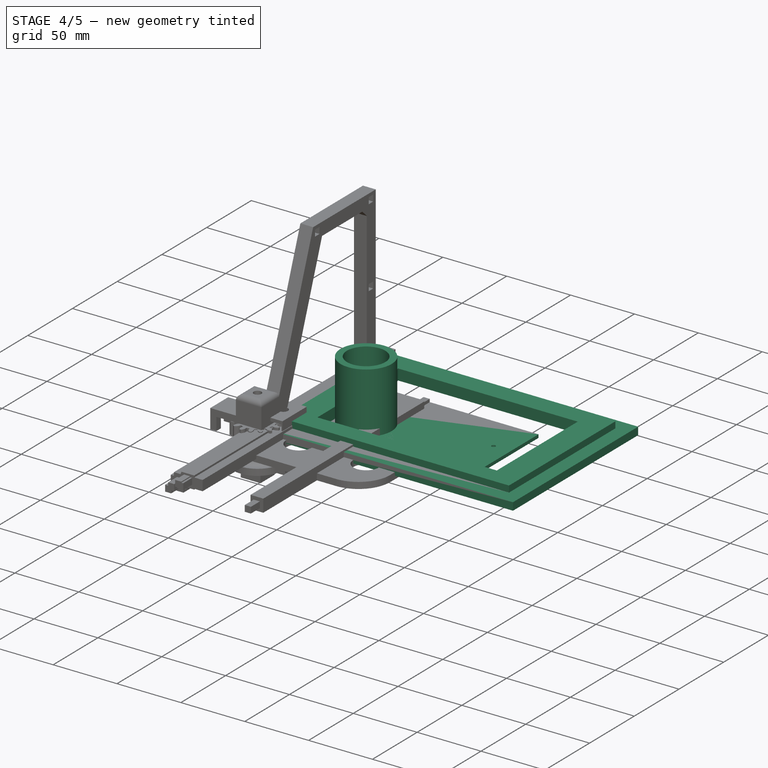
[diagram: stage 4 of 5 — iso view after this stage's code; geometry added in this stage tinted green]
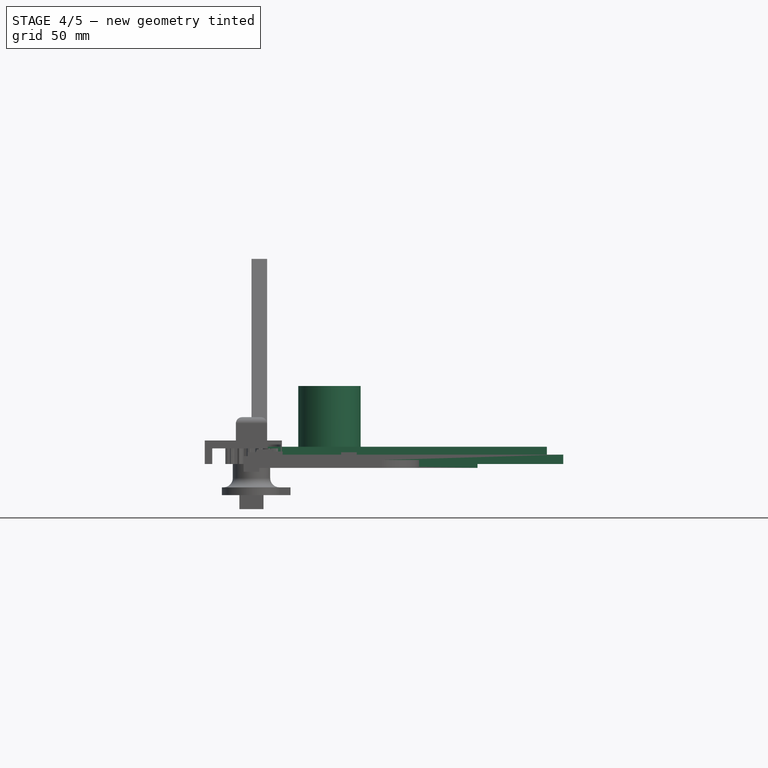
[diagram: stage 4 of 5 — front view after this stage's code; geometry added in this stage tinted green]
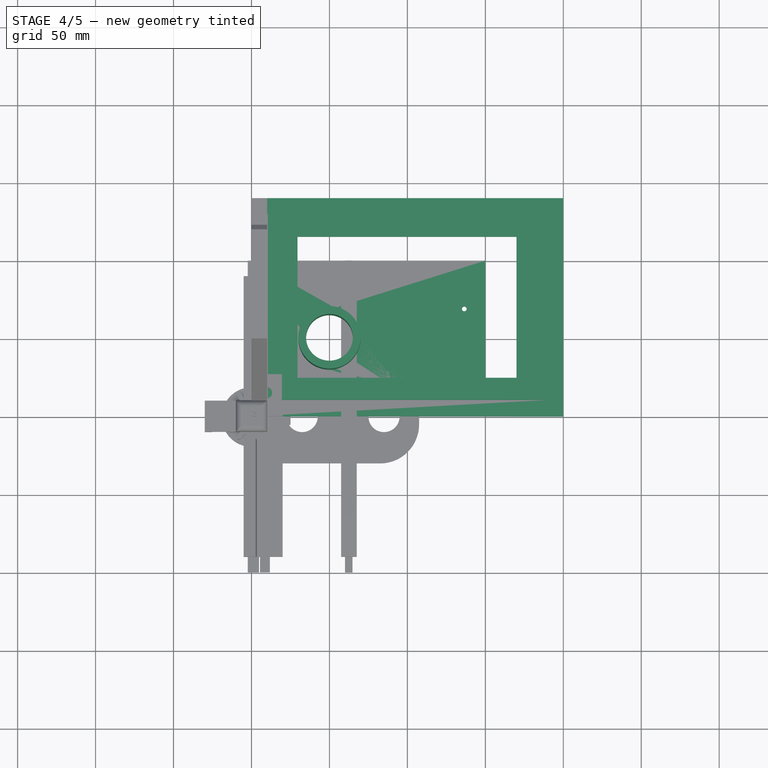
[diagram: stage 4 of 5 — top view after this stage's code; geometry added in this stage tinted green]
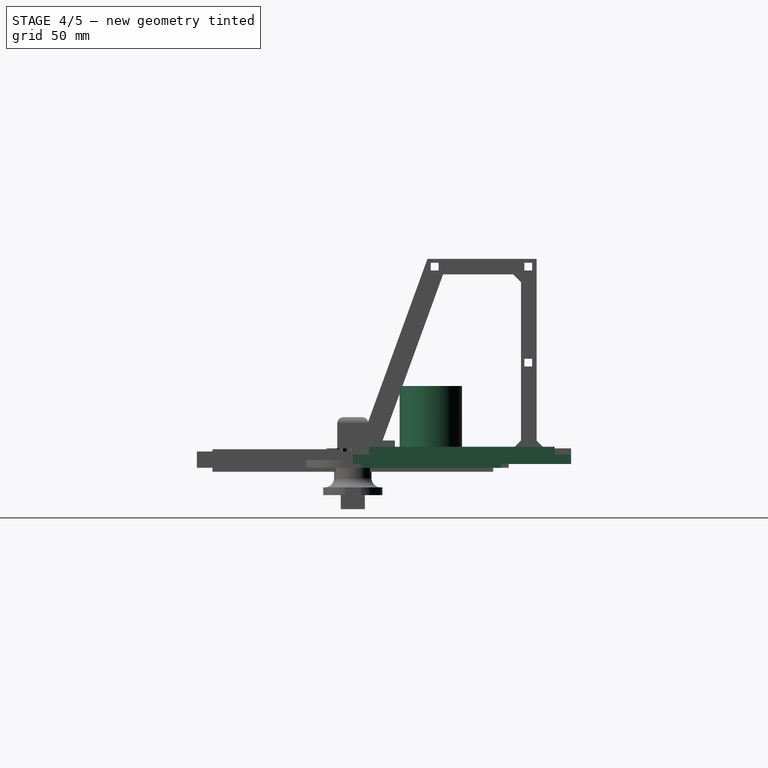
[diagram: stage 4 of 5 — right view after this stage's code; geometry added in this stage tinted green]
FEATURE [PartDesign::Body] Body002  label="Handle001"
  Group = -> [Sketch012,Sketch014,Sketch013,Sketch011,Pad006,Pad005,Pocket006,Pocket007,Sketch015,Pocket008,Fillet001]
  Origin = -> Origin002
  Placement = pos=(50,50,100) rot=(0,0,1;0.523599rad)
  Tip = -> Fillet001
FEATURE [Sketcher::SketchObject] Sketch019  label="Wheel_Pocket"
  FullyConstrained = true
  MapMode = 5
  Support = -> [XY_Plane005]
  sketch-geometry (1):
    g0: Circle CenterX=50 CenterY=50 CenterZ=0 NormalX=0 NormalY=0 NormalZ=1 AngleXU=0 Radius=15
  constraints (3):
    c: Radius(g0) = 15
    c: DistanceX(g-1,g0) = 50
    c: DistanceY(g-1,g0) = 50
FEATURE [Sketcher::SketchObject] Sketch020  label="BasePanel"
  FullyConstrained = true
  MapMode = 5
  Support = -> [XY_Plane005]
  sketch-geometry (4):
    g0: LineSegment StartX=0 StartY=0 StartZ=0 EndX=150 EndY=0 EndZ=0
    g1: LineSegment StartX=150 StartY=0 StartZ=0 EndX=150 EndY=100 EndZ=0
    g2: LineSegment StartX=150 StartY=100 StartZ=0 EndX=0 EndY=100 EndZ=0
    g3: LineSegment StartX=0 StartY=100 StartZ=0 EndX=0 EndY=0 EndZ=0
  constraints (11):
    c: Coincident(g0,g1)
    c: Coincident(g1,g2)
    c: Coincident(g2,g3)
    c: Coincident(g3,g0)
    c: Horizontal(g0)
    c: Horizontal(g2)
    c: Vertical(g1)
    c: Vertical(g3)
    c: Coincident(g0,g-1)
    c: DistanceX(g0,g0) = 150
    c: DistanceY(g1,g1) = 100
FEATURE [PartDesign::Pad] Pad009
  Direction = (1,1,1)
  Length = 2.5
  Length2 = 100
  Profile = -> Sketch020
  Refine = true
  Type = 0
FEATURE [Sketcher::SketchObject] Sketch021
  FullyConstrained = true
  MapMode = 5
  Support = -> [XY_Plane005]
  sketch-geometry (1):
    g0: Circle CenterX=50 CenterY=50 CenterZ=0 NormalX=0 NormalY=0 NormalZ=1 AngleXU=0 Radius=20
  constraints (3):
    c: DistanceX(g-1,g0) = 50
    c: DistanceY(g-1,g0) = 50
    c: Radius(g0) = 20
FEATURE [Sketcher::SketchObject] Sketch005  label="InnerPanel"
  FullyConstrained = true
  MapMode = 5
  Support = -> [XY_Plane005]
  sketch-geometry (4):
    g0: LineSegment StartX=5 StartY=95 StartZ=0 EndX=145 EndY=95 EndZ=0
    g1: LineSegment StartX=145 StartY=95 StartZ=0 EndX=145 EndY=5 EndZ=0
    g2: LineSegment StartX=145 StartY=5 StartZ=0 EndX=5 EndY=5 EndZ=0
    g3: LineSegment StartX=5 StartY=5 StartZ=0 EndX=5 EndY=95 EndZ=0
  constraints (12):
    c: Coincident(g0,g1)
    c: Coincident(g1,g2)
    c: Coincident(g2,g3)
    c: Coincident(g3,g0)
    c: Horizontal(g0)
    c: Horizontal(g2)
    c: Vertical(g1)
    c: Vertical(g3)
    c: DistanceX(g0,g0) = 140
    c: DistanceX(g-1,g2) = 5
    c: DistanceY(g1,g1) = 90
    c: DistanceY(g-1,g2) = 5
FEATURE [PartDesign::Pad] Pad010
  BaseFeature = -> Pad009
  Direction = (1,1,1)
  Length = 2.5
  Length2 = 100
  Profile = -> Sketch005
  Refine = true
  Reversed = true
  Type = 0
FEATURE [PartDesign::Pad] Pad002
  BaseFeature = -> Pad010
  Direction = (1,1,1)
  Length = 50
  Length2 = 100
  Profile = -> Sketch021
  Refine = true
  Type = 0
FEATURE [Sketcher::SketchObject] Sketch003  label="Arduino_Slot"
  FullyConstrained = true
  MapMode = 5
  Support = -> [XY_Plane005]
  sketch-geometry (4):
    g0: LineSegment StartX=85 StartY=85 StartZ=0 EndX=140 EndY=85 EndZ=0
    g1: LineSegment StartX=140 StartY=85 StartZ=0 EndX=140 EndY=15 EndZ=0
    g2: LineSegment StartX=140 StartY=15 StartZ=0 EndX=85 EndY=15 EndZ=0
    g3: LineSegment StartX=85 StartY=15 StartZ=0 EndX=85 EndY=85 EndZ=0
  constraints (12):
    c: Coincident(g0,g1)
    c: Coincident(g1,g2)
    c: Coincident(g2,g3)
    c: Coincident(g3,g0)
    c: Horizontal(g0)
    c: Horizontal(g2)
    c: Vertical(g1)
    c: Vertical(g3)
    c: DistanceX(g0,g0) = 55
    c: DistanceY(g1,g1) = 70
    c: DistanceX(g-1,g2) = 85
    c: DistanceY(g-1,g2) = 15
FEATURE [Sketcher::SketchObject] Sketch004  label="Arduino_Holder_Pin"
  FullyConstrained = true
  MapMode = 5
  Support = -> [XY_Plane005]
  sketch-geometry (3):
    g0: Circle CenterX=121 CenterY=18.5 CenterZ=0 NormalX=0 NormalY=0 NormalZ=1 AngleXU=0 Radius=1.5
    g1: Circle CenterX=136.5 CenterY=69 CenterZ=0 NormalX=0 NormalY=0 NormalZ=1 AngleXU=0 Radius=1.5
    g2: Circle CenterX=93 CenterY=18.5 CenterZ=0 NormalX=0 NormalY=0 NormalZ=1 AngleXU=0 Radius=1.5
  constraints (9):
    c: Radius(g1) = 1.5
    c: Radius(g0) = 1.5
    c: Radius(g2) = 1.5
    c: DistanceX(g2,g0) = 28
    c: DistanceY(g2,g0) = 0
    c: DistanceX(g2,g1) = 43.5
    c: DistanceY(g2,g1) = 50.5
    c: DistanceX(g-1,g2) = 93
    c: DistanceY(g-1,g2) = 18.5
FEATURE [PartDesign::Pocket] Pocket010
  BaseFeature = -> Pad002
  Length = 100
  Length2 = 100
  Midplane = true
  Profile = -> Sketch019
  Refine = true
  Type = 0
FEATURE [PartDesign::Pocket] Pocket001
  BaseFeature = -> Pocket010
  Length = 3
  Length2 = 100
  Profile = -> Sketch003
  Refine = true
  Type = 0
FEATURE [PartDesign::Pocket] Pocket002
  BaseFeature = -> Pocket001
  Length = 5
  Length2 = 100
  Midplane = true
  Profile = -> Sketch004
  Refine = true
  Type = 0
FEATURE [PartDesign::Body] Body005  label="MainBody"
  Group = -> [Sketch020,Sketch019,Sketch021,Sketch003,Sketch004,Sketch005,Pad009,Pad010,Pad002,Pocket010,Pocket001,Pocket002,Sketch006,Pocket003,Sketch007,Pocket004,Fillet]
  Origin = -> Origin005
  Tip = -> Fillet
FEATURE [Sketcher::SketchObject] Sketch025
  FullyConstrained = true
  MapMode = 5
  Support = -> [XY_Plane007]
  sketch-geometry (4):
    g0: LineSegment StartX=29.5 StartY=115.25 StartZ=0 EndX=170 EndY=115.25 EndZ=0
    g1: LineSegment StartX=170 StartY=115.25 StartZ=0 EndX=170 EndY=24.75 EndZ=0
    g2: LineSegment StartX=170 StartY=24.75 StartZ=0 EndX=29.5 EndY=24.75 EndZ=0
    g3: LineSegment StartX=29.5 StartY=24.75 StartZ=0 EndX=29.5 EndY=115.25 EndZ=0
  constraints (12):
    c: Coincident(g0,g1)
    c: Coincident(g1,g2)
    c: Coincident(g2,g3)
    c: Coincident(g3,g0)
    c: Horizontal(g0)
    c: Horizontal(g2)
    c: Vertical(g1)
    c: Vertical(g3)
    c: DistanceX(g0,g0) = 140.5
    c: DistanceY(g1,g1) = 90.5
    c: DistanceY(g-1,g2) = 24.75
    c: DistanceX(g-1,g2) = 29.5
FEATURE [Sketcher::SketchObject] Sketch026  label="Small_Frame"
  FullyConstrained = true
  MapMode = 5
  Support = -> [XY_Plane007]
  sketch-geometry (4):
    g0: LineSegment StartX=10.5 StartY=129.5 StartZ=0 EndX=189.5 EndY=129.5 EndZ=0
    g1: LineSegment StartX=189.5 StartY=129.5 StartZ=0 EndX=189.5 EndY=10.5 EndZ=0
    g2: LineSegment StartX=189.5 StartY=10.5 StartZ=0 EndX=10.5 EndY=10.5 EndZ=0
    g3: LineSegment StartX=10.5 StartY=10.5 StartZ=0 EndX=10.5 EndY=129.5 EndZ=0
  constraints (12):
    c: Coincident(g0,g1)
    c: Coincident(g1,g2)
    c: Coincident(g2,g3)
    c: Coincident(g3,g0)
    c: Horizontal(g0)
    c: Horizontal(g2)
    c: Vertical(g1)
    c: Vertical(g3)
    c: DistanceX(g2,g2) = 179
    c: DistanceY(g1,g1) = 119
    c: DistanceY(g-1,g2) = 10.5
    c: DistanceX(g-1,g2) = 10.5
FEATURE [Sketcher::SketchObject] Sketch027
  FullyConstrained = true
  MapMode = 5
  Support = -> [XY_Plane007]
  sketch-geometry (4):
    g0: LineSegment StartX=24.75 StartY=120.25 StartZ=0 EndX=175.25 EndY=120.25 EndZ=0
    g1: LineSegment StartX=175.25 StartY=120.25 StartZ=0 EndX=175.25 EndY=19.75 EndZ=0
    g2: LineSegment StartX=175.25 StartY=19.75 StartZ=0 EndX=24.75 EndY=19.75 EndZ=0
    g3: LineSegment StartX=24.75 StartY=19.75 StartZ=0 EndX=24.75 EndY=120.25 EndZ=0
  constraints (12):
    c: Coincident(g0,g1)
    c: Coincident(g1,g2)
    c: Coincident(g2,g3)
    c: Coincident(g3,g0)
    c: Horizontal(g0)
    c: Horizontal(g2)
    c: Vertical(g1)
    c: Vertical(g3)
    c: DistanceX(g0,g0) = 150.5
    c: DistanceY(g1,g1) = 100.5
    c: DistanceY(g-1,g2) = 19.75
    c: DistanceX(g-1,g2) = 24.75
FEATURE [Sketcher::SketchObject] Sketch028  label="Big_Frame"
  FullyConstrained = true
  MapMode = 5
  Support = -> [XY_Plane007]
  sketch-geometry (4):
    g0: LineSegment StartX=0 StartY=0 StartZ=0 EndX=200 EndY=0 EndZ=0
    g1: LineSegment StartX=200 StartY=0 StartZ=0 EndX=200 EndY=140 EndZ=0
    g2: LineSegment StartX=200 StartY=140 StartZ=0 EndX=0 EndY=140 EndZ=0
    g3: LineSegment StartX=0 StartY=140 StartZ=0 EndX=0 EndY=0 EndZ=0
  constraints (11):
    c: Coincident(g0,g1)
    c: Coincident(g1,g2)
    c: Coincident(g2,g3)
    c: Coincident(g3,g0)
    c: Horizontal(g0)
    c: Horizontal(g2)
    c: Vertical(g1)
    c: Vertical(g3)
    c: Coincident(g0,g-1)
    c: DistanceX(g2,g2) = 200
    c: DistanceY(g1,g1) = 140
FEATURE [PartDesign::Pad] Pad014
  Direction = (1,1,1)
  Length = 6
  Length2 = 100
  Profile = -> Sketch028
  Type = 0
FEATURE [PartDesign::Pad] Pad015
  BaseFeature = -> Pad014
  Direction = (1,1,1)
  Length = 11
  Length2 = 100
  Profile = -> Sketch026
  Type = 0
FEATURE [PartDesign::Pocket] Pocket012
  BaseFeature = -> Pad015
  Length = 2.5
  Length2 = 100
  Profile = -> Sketch027
  Reversed = true
  Type = 0
FEATURE [PartDesign::Pocket] Pocket011
  BaseFeature = -> Pocket012
  Length = 12
  Length2 = 100
  Profile = -> Sketch025
  Reversed = true
  Type = 0
FEATURE [PartDesign::Pocket] Pocket013
  BaseFeature = -> Pad016
  Length = 10
  Length2 = 100
  Placement = pos=(0,0,0) rot=(0.57735,0.57735,0.57735;2.0944rad)
  Profile = -> Sketch029
  Reversed = true
  Type = 0
FEATURE [PartDesign::Chamfer] Chamfer
  Angle = 45
  Base = -> Pocket013 [Edge74,Edge90,Edge89,Edge88]
  BaseFeature = -> Pocket013
  ChamferType = 0
  FlipDirection = false
  Placement = pos=(0,0,0) rot=(0.57735,0.57735,0.57735;2.0944rad)
  Size = 5
  Size2 = 1
  SupportTransform = false
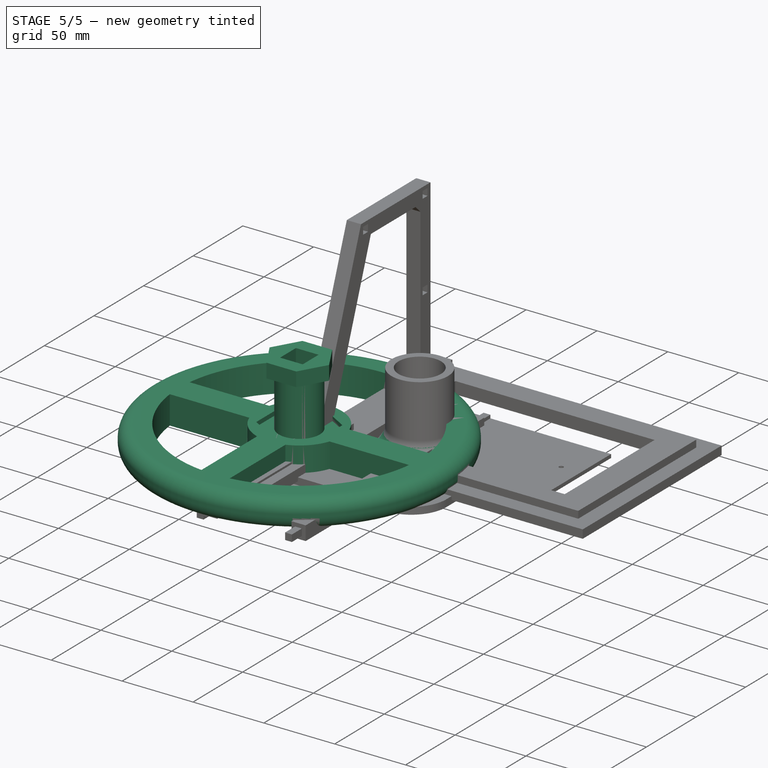
[diagram: stage 5 of 5 — iso view after this stage's code; geometry added in this stage tinted green]
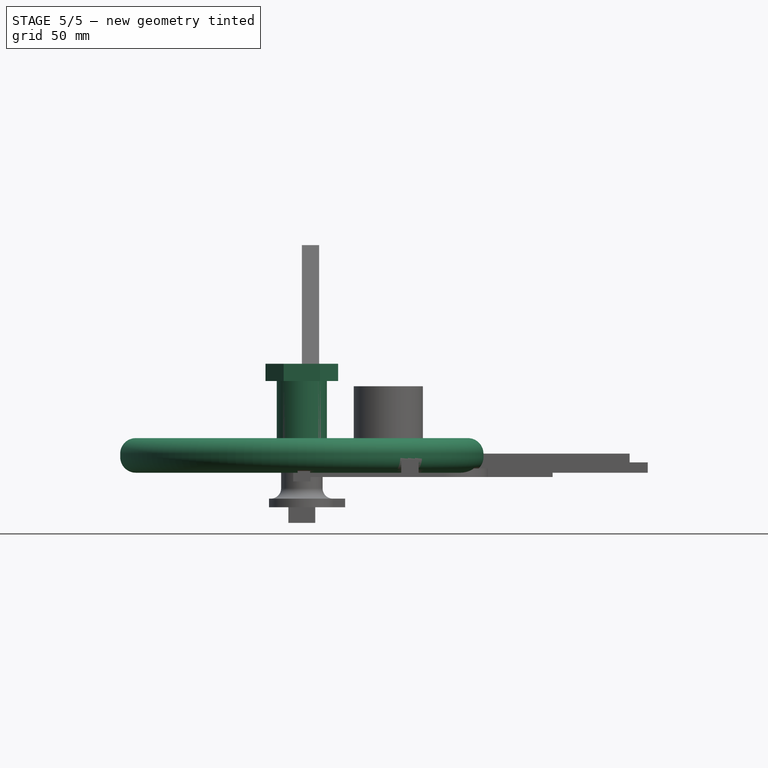
[diagram: stage 5 of 5 — front view after this stage's code; geometry added in this stage tinted green]
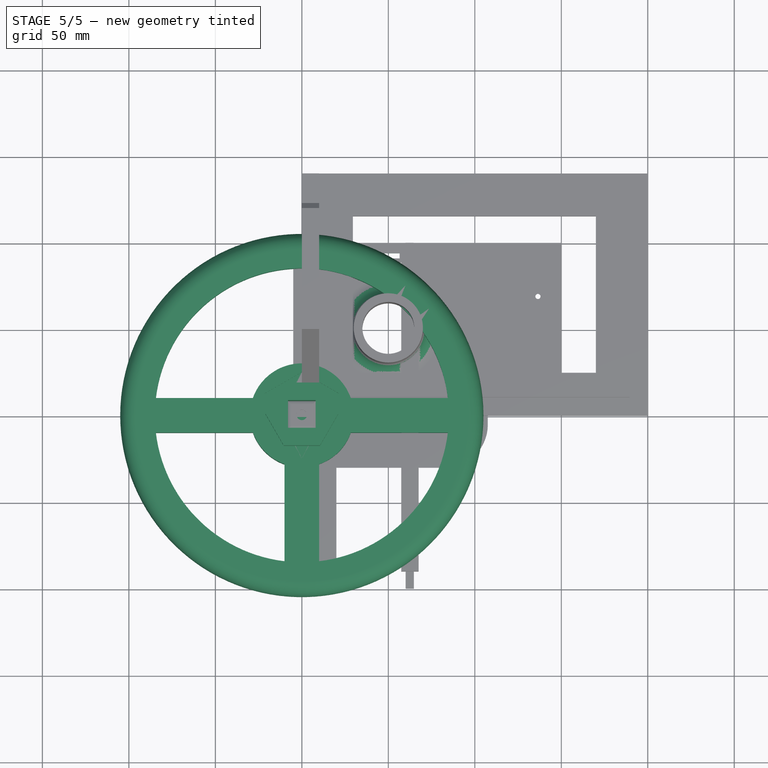
[diagram: stage 5 of 5 — top view after this stage's code; geometry added in this stage tinted green]
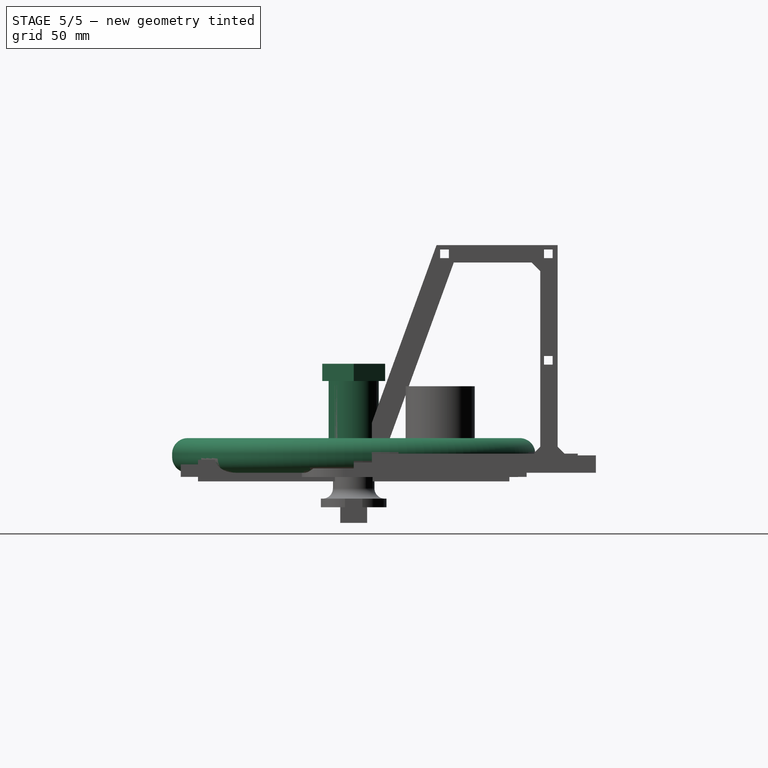
[diagram: stage 5 of 5 — right view after this stage's code; geometry added in this stage tinted green]
FEATURE [Sketcher::SketchObject] Sketch001  label="Square"
  FullyConstrained = true
  MapMode = 5
  Support = -> [XY_Plane]
  sketch-geometry (4):
    g0: LineSegment StartX=-8 StartY=8 StartZ=0 EndX=8 EndY=8 EndZ=0
    g1: LineSegment StartX=8 StartY=8 StartZ=0 EndX=8 EndY=-8 EndZ=0
    g2: LineSegment StartX=8 StartY=-8 StartZ=0 EndX=-8 EndY=-8 EndZ=0
    g3: LineSegment StartX=-8 StartY=-8 StartZ=0 EndX=-8 EndY=8 EndZ=0
  constraints (12):
    c: Coincident(g0,g1)
    c: Coincident(g1,g2)
    c: Coincident(g2,g3)
    c: Coincident(g3,g0)
    c: Horizontal(g0)
    c: Horizontal(g2)
    c: Vertical(g1)
    c: Vertical(g3)
    c: DistanceX(g0,g0) = 16
    c: DistanceX(g0,g-1) = 8
    c: DistanceY(g-1,g0) = 8
    c: DistanceY(g1,g1) = 16
FEATURE [Sketcher::SketchObject] Sketch002  label="Hexagon"
  AttachmentOffset = pos=(0,0,53) rot=(0,0,1;0rad)
  FullyConstrained = true
  MapMode = 5
  Placement = pos=(0,0,53) rot=(0,0,1;0rad)
  Support = -> [XY_Plane]
  sketch-geometry (7):
    g0: LineSegment StartX=21 StartY=0 StartZ=0 EndX=10.5 EndY=18.1865 EndZ=0
    g1: LineSegment StartX=10.5 StartY=18.1865 StartZ=0 EndX=-10.5 EndY=18.1865 EndZ=0
    g2: LineSegment StartX=-10.5 StartY=18.1865 StartZ=0 EndX=-21 EndY=0 EndZ=0
    g3: LineSegment StartX=-21 StartY=0 StartZ=0 EndX=-10.5 EndY=-18.1865 EndZ=0
    g4: LineSegment StartX=-10.5 StartY=-18.1865 StartZ=0 EndX=10.5 EndY=-18.1865 EndZ=0
    g5: LineSegment StartX=10.5 StartY=-18.1865 StartZ=0 EndX=21 EndY=0 EndZ=0
    g6: Circle CenterX=0 CenterY=0 CenterZ=0 NormalX=0 NormalY=0 NormalZ=1 AngleXU=0 Radius=21
  constraints (16):
    c: Coincident(g0,g1)
    c: Coincident(g1,g2)
    c: Coincident(g2,g3)
    c: Coincident(g3,g4)
    c: Coincident(g4,g5)
    c: Coincident(g5,g0)
    c: Equal(g0, g1-g5) x5
    c: PointOnObject(g0,g6)
    c: PointOnObject(g1,g6)
    c: PointOnObject(g2,g6)
    c: PointOnObject(g3,g6)
    c: PointOnObject(g4,g6)
    c: PointOnObject(g5,g6)
    c: Coincident(g6,g-1)
    c: PointOnObject(g5,g-1)
    c: Radius(g6) = 21
FEATURE [Sketcher::SketchObject] Sketch  label="Cylinder"
  FullyConstrained = true
  MapMode = 5
  Support = -> [XY_Plane]
  sketch-geometry (1):
    g0: Circle CenterX=0 CenterY=0 CenterZ=0 NormalX=0 NormalY=0 NormalZ=1 AngleXU=0 Radius=14.5
  constraints (2):
    c: Coincident(g0,g-1)
    c: Radius(g0) = 14.5
FEATURE [PartDesign::Pad] Pad
  Direction = (1,1,1)
  Length = 53
  Length2 = 100
  Profile = -> Sketch
  Refine = true
  Type = 0
FEATURE [PartDesign::Pad] Pad001
  BaseFeature = -> Pad
  Direction = (1,1,1)
  Length = 10
  Length2 = 100
  Profile = -> Sketch002
  Refine = true
  Type = 0
FEATURE [PartDesign::Pocket] Pocket
  BaseFeature = -> Pad001
  Length = 70
  Length2 = 100
  Profile = -> Sketch001
  Refine = true
  Reversed = true
  Type = 0
FEATURE [PartDesign::Body] Body  label="Rod"
  Group = -> [Sketch,Sketch001,Sketch002,Pad,Pad001,Pocket]
  Origin = -> Origin
  Placement = pos=(50,50,-3) rot=(0,0,1;0rad)
  Tip = -> Pocket
FEATURE [Sketcher::SketchObject] Sketch011
  FullyConstrained = true
  MapMode = 5
  Support = -> [XY_Plane002]
  sketch-geometry (7):
    g0: LineSegment StartX=19.0526 StartY=11 StartZ=0 EndX=0 EndY=22 EndZ=0
    g1: LineSegment StartX=0 StartY=22 StartZ=0 EndX=-19.0526 EndY=11 EndZ=0
    g2: LineSegment StartX=-19.0526 StartY=11 StartZ=0 EndX=-19.0526 EndY=-11 EndZ=0
    g3: LineSegment StartX=-19.0526 StartY=-11 StartZ=0 EndX=3.6e-15 EndY=-22 EndZ=0
    g4: LineSegment StartX=3.6e-15 StartY=-22 StartZ=0 EndX=19.0526 EndY=-11 EndZ=0
    g5: LineSegment StartX=19.0526 StartY=-11 StartZ=0 EndX=19.0526 EndY=11 EndZ=0
    g6: Circle CenterX=0 CenterY=0 CenterZ=0 NormalX=0 NormalY=0 NormalZ=1 AngleXU=0 Radius=22
  constraints (16):
    c: Coincident(g0,g1)
    c: Coincident(g1,g2)
    c: Coincident(g2,g3)
    c: Coincident(g3,g4)
    c: Coincident(g4,g5)
    c: Coincident(g5,g0)
    c: Equal(g0, g1-g5) x5
    c: PointOnObject(g0,g6)
    c: PointOnObject(g1,g6)
    c: PointOnObject(g2,g6)
    c: PointOnObject(g3,g6)
    c: PointOnObject(g4,g6)
    c: PointOnObject(g5,g6)
    c: Coincident(g6,g-1)
    c: Radius(g6) = 22
    c: DistanceX(g-1,g0) = 0
FEATURE [Sketcher::SketchObject] Sketch012  label="Handle"
  FullyConstrained = true
  MapMode = 5
  Support = -> [XY_Plane002]
  sketch-geometry (2):
    g0: Circle CenterX=0 CenterY=0 CenterZ=0 NormalX=0 NormalY=0 NormalZ=1 AngleXU=0 Radius=105
    g1: Circle CenterX=0 CenterY=0 CenterZ=0 NormalX=0 NormalY=0 NormalZ=1 AngleXU=0 Radius=85
  constraints (4):
    c: Coincident(g0,g-1)
    c: Radius(g0) = 105
    c: Coincident(g1,g0)
    c: Radius(g1) = 85
FEATURE [PartDesign::Pad] Pad006
  Direction = (1,1,1)
  Length = 20
  Length2 = 100
  Profile = -> Sketch012
  Refine = true
  Type = 0
FEATURE [Sketcher::SketchObject] Sketch013  label="BoltHole"
  FullyConstrained = true
  MapMode = 5
  Support = -> [XY_Plane002]
  sketch-geometry (2):
    g0: Circle CenterX=-13 CenterY=0 CenterZ=0 NormalX=0 NormalY=0 NormalZ=1 AngleXU=0 Radius=1.6
    g1: Circle CenterX=13 CenterY=0 CenterZ=0 NormalX=0 NormalY=0 NormalZ=1 AngleXU=0 Radius=1.6
  constraints (6):
    c: PointOnObject(g0,g-1)
    c: PointOnObject(g1,g-1)
    c: Radius(g0) = 1.6
    c: Radius(g1) = 1.6
    c: DistanceX(g0,g-1) = 13
    c: DistanceX(g0,g1) = 26
FEATURE [Sketcher::SketchObject] Sketch014  label="Spoke"
  FullyConstrained = true
  MapMode = 5
  Support = -> [XY_Plane002]
  sketch-geometry (12):
    g0: ArcOfCircle CenterX=0 CenterY=0 CenterZ=0 NormalX=0 NormalY=0 NormalZ=1 AngleXU=0 Radius=30 StartAngle=3.48143 EndAngle=4.37255
    g1: LineSegment StartX=-100 StartY=10 StartZ=0 EndX=-28.2843 EndY=10 EndZ=0
    g2: LineSegment StartX=100 StartY=10 StartZ=0 EndX=100 EndY=-10 EndZ=0
    g3: LineSegment StartX=100 StartY=-10 StartZ=0 EndX=28.2843 EndY=-10 EndZ=0
    g4: LineSegment StartX=-100 StartY=-10 StartZ=0 EndX=-100 EndY=10 EndZ=0
    g5: LineSegment StartX=28.2843 StartY=10 StartZ=0 EndX=100 EndY=10 EndZ=0
    g6: ArcOfCircle CenterX=0 CenterY=0 CenterZ=0 NormalX=0 NormalY=0 NormalZ=1 AngleXU=0 Radius=30 StartAngle=0.339837 EndAngle=2.80176
    g7: LineSegment StartX=-28.2843 StartY=-10 StartZ=0 EndX=-100 EndY=-10 EndZ=0
    g8: LineSegment StartX=10 StartY=-28.2843 StartZ=0 EndX=10 EndY=-100 EndZ=0
    g9: LineSegment StartX=10 StartY=-100 StartZ=0 EndX=-10 EndY=-100 EndZ=0
    g10: LineSegment StartX=-10 StartY=-100 StartZ=0 EndX=-10 EndY=-28.2843 EndZ=0
    g11: ArcOfCircle CenterX=0 CenterY=0 CenterZ=0 NormalX=0 NormalY=0 NormalZ=1 AngleXU=0 Radius=30 StartAngle=5.05223 EndAngle=5.94335
  constraints (34):
    c: Coincident(g0,g-1)
    c: Radius(g0) = 30
    c: Coincident(g5,g2)
    c: Coincident(g2,g3)
    c: Coincident(g7,g4)
    c: Coincident(g4,g1)
    c: Horizontal(g1)
    c: Horizontal(g3)
    c: Vertical(g2)
    c: Vertical(g4)
    c: DistanceY(g2,g2) = 20
    c: DistanceX(g1,g5) = 200
    c: DistanceY(g0,g1) = 10
    c: DistanceX(g1,g0) = 100
    c: Coincident(g1,g6)
    c: Tangent(g1,g5)
    c: Equal(g0,g6)
    c: Coincident(g6,g5)
    c: Coincident(g0,g6)
    c: Coincident(g3,g11)
    c: Coincident(g7,g0)
    c: Tangent(g3,g7)
    c: Coincident(g8,g9)
    c: Coincident(g9,g10)
    c: Horizontal(g9)
    c: Vertical(g8)
    c: Vertical(g10)
    c: Equal(g0,g11)
    c: Coincident(g0,g11)
    c: Coincident(g10,g0)
    c: Coincident(g8,g11)
    c: DistanceX(g9,g9) = 20
    c: DistanceY(g9,g0) = 100
    c: DistanceX(g9,g0) = 10
FEATURE [PartDesign::Pad] Pad005
  BaseFeature = -> Pad006
  Direction = (1,1,1)
  Length = 20
  Length2 = 100
  Profile = -> Sketch014
  Refine = true
  Type = 0
FEATURE [PartDesign::Pocket] Pocket006
  BaseFeature = -> Pad005
  Length = 10
  Length2 = 100
  Profile = -> Sketch011
  Refine = true
  Reversed = true
  Type = 0
FEATURE [PartDesign::Pocket] Pocket007
  BaseFeature = -> Pocket006
  Length = 20
  Length2 = 100
  Profile = -> Sketch013
  Refine = true
  Reversed = true
  Type = 0
FEATURE [Sketcher::SketchObject] Sketch015  label="Front_Deco"
  AttachmentOffset = pos=(0,0,20) rot=(0,0,1;0rad)
  FullyConstrained = true
  MapMode = 5
  Placement = pos=(0,0,20) rot=(0,0,1;0rad)
  Support = -> [XY_Plane002]
  sketch-geometry (7):
    g0: LineSegment StartX=21.6506 StartY=12.5 StartZ=0 EndX=0 EndY=25 EndZ=0
    g1: LineSegment StartX=0 StartY=25 StartZ=0 EndX=-21.6506 EndY=12.5 EndZ=0
    g2: LineSegment StartX=-21.6506 StartY=12.5 StartZ=0 EndX=-21.6506 EndY=-12.5 EndZ=0
    g3: LineSegment StartX=-21.6506 StartY=-12.5 StartZ=0 EndX=-6.2311e-11 EndY=-25 EndZ=0
    g4: LineSegment StartX=-6.2311e-11 StartY=-25 StartZ=0 EndX=21.6506 EndY=-12.5 EndZ=0
    g5: LineSegment StartX=21.6506 StartY=-12.5 StartZ=0 EndX=21.6506 EndY=12.5 EndZ=0
    g6: Circle CenterX=0 CenterY=1e-16 CenterZ=0 NormalX=0 NormalY=0 NormalZ=1 AngleXU=0 Radius=25
  constraints (16):
    c: Coincident(g0,g1)
    c: Coincident(g1,g2)
    c: Coincident(g2,g3)
    c: Coincident(g3,g4)
    c: Coincident(g4,g5)
    c: Coincident(g5,g0)
    c: Equal(g0, g1-g5) x5
    c: PointOnObject(g0,g6)
    c: PointOnObject(g1,g6)
    c: PointOnObject(g2,g6)
    c: PointOnObject(g3,g6)
    c: PointOnObject(g4,g6)
    c: PointOnObject(g5,g6)
    c: Coincident(g6,g-1)
    c: DistanceX(g0,g-1) = 0
    c: Radius(g6) = 25
FEATURE [PartDesign::Pocket] Pocket008
  BaseFeature = -> Pocket007
  Length = 3
  Length2 = 100
  Profile = -> Sketch015
  Refine = true
  Type = 0
FEATURE [PartDesign::Fillet] Fillet001
  Base = -> Pocket008 [Edge3,Edge2]
  BaseFeature = -> Pocket008
  Radius = 9
  Refine = true
  SupportTransform = false
FEATURE [Sketcher::SketchObject] Sketch006  label="EncoderHolder"
  AttachmentOffset = pos=(0,0,-2.5) rot=(0,0,1;0rad)
  FullyConstrained = true
  MapMode = 5
  Placement = pos=(0,0,-2.5) rot=(0,0,1;0rad)
  Support = -> [XY_Plane005]
  sketch-geometry (4):
    g0: LineSegment StartX=38 StartY=90 StartZ=0 EndX=66 EndY=90 EndZ=0
    g1: LineSegment StartX=66 StartY=90 StartZ=0 EndX=66 EndY=70 EndZ=0
    g2: LineSegment StartX=66 StartY=70 StartZ=0 EndX=38 EndY=70 EndZ=0
    g3: LineSegment StartX=38 StartY=70 StartZ=0 EndX=38 EndY=90 EndZ=0
  constraints (12):
    c: Coincident(g0,g1)
    c: Coincident(g1,g2)
    c: Coincident(g2,g3)
    c: Coincident(g3,g0)
    c: Horizontal(g0)
    c: Horizontal(g2)
    c: Vertical(g1)
    c: Vertical(g3)
    c: DistanceX(g0,g0) = 28
    c: DistanceY(g1,g1) = 20
    c: DistanceY(g-1,g2) = 70
    c: DistanceX(g-1,g2) = 38
FEATURE [PartDesign::Pocket] Pocket003
  BaseFeature = -> Pocket002
  Length = 2
  Length2 = 100
  Profile = -> Sketch006
  Refine = true
  Reversed = true
  Type = 0
FEATURE [Sketcher::SketchObject] Sketch007  label="EncoderHole"
  AttachmentOffset = pos=(0,0,5.5) rot=(0,0,1;0rad)
  FullyConstrained = true
  MapMode = 5
  Placement = pos=(0,0,5.5) rot=(0,0,1;0rad)
  Support = -> [XY_Plane005]
  sketch-geometry (6):
    g0: Circle CenterX=44.5 CenterY=88 CenterZ=0 NormalX=0 NormalY=0 NormalZ=1 AngleXU=0 Radius=1.4
    g1: Circle CenterX=58.5 CenterY=88 CenterZ=0 NormalX=0 NormalY=0 NormalZ=1 AngleXU=0 Radius=1.4
    g2: LineSegment StartX=46.5 StartY=94 StartZ=0 EndX=56.5 EndY=94 EndZ=0
    g3: LineSegment StartX=56.5 StartY=94 StartZ=0 EndX=56.5 EndY=91 EndZ=0
    g4: LineSegment StartX=56.5 StartY=91 StartZ=0 EndX=46.5 EndY=91 EndZ=0
    g5: LineSegment StartX=46.5 StartY=91 StartZ=0 EndX=46.5 EndY=94 EndZ=0
  constraints (18):
    c: DistanceX(g0,g1) = 14
    c: DistanceY(g1,g0) = 0
    c: Radius(g1) = 1.4
    c: Radius(g0) = 1.4
    c: DistanceY(g-1,g0) = 88
    c: DistanceX(g-1,g0) = 44.5
    c: Coincident(g2,g3)
    c: Coincident(g3,g4)
    c: Coincident(g4,g5)
    c: Coincident(g5,g2)
    c: Horizontal(g2)
    c: Horizontal(g4)
    c: Vertical(g3)
    c: Vertical(g5)
    c: DistanceX(g2,g2) = 10
    c: DistanceY(g3,g3) = 3
    c: DistanceY(g0,g4) = 3
    c: DistanceX(g0,g4) = 2
FEATURE [PartDesign::Pocket] Pocket004
  BaseFeature = -> Pocket003
  Length = 100
  Length2 = 100
  Midplane = true
  Profile = -> Sketch007
  Refine = true
  Type = 0
FEATURE [PartDesign::Fillet] Fillet
  Base = -> Pocket004 [Edge17]
  BaseFeature = -> Pocket004
  Radius = 10
  Refine = true
  SupportTransform = false
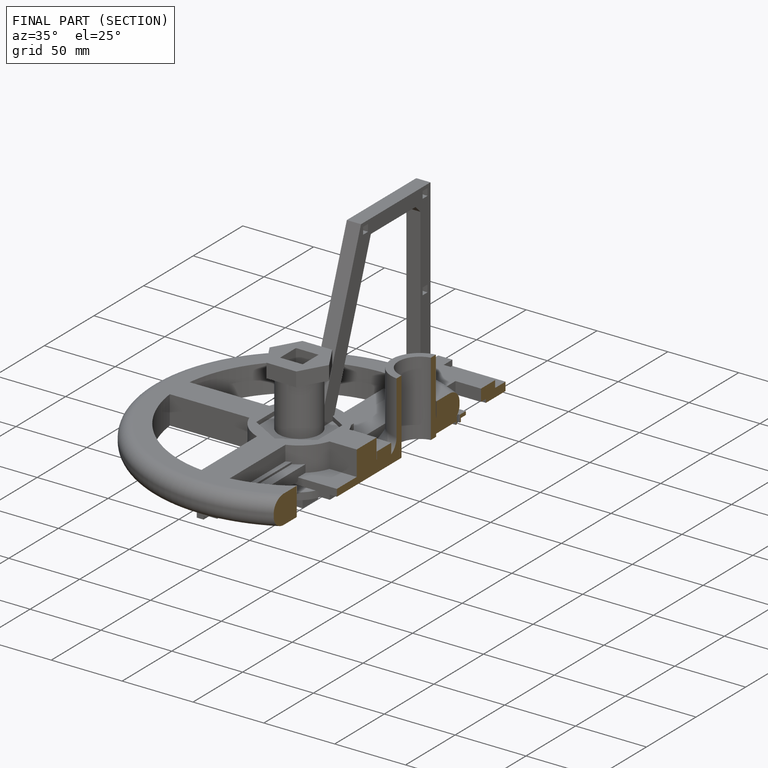
[diagram: finished part — half-section view (interior)]
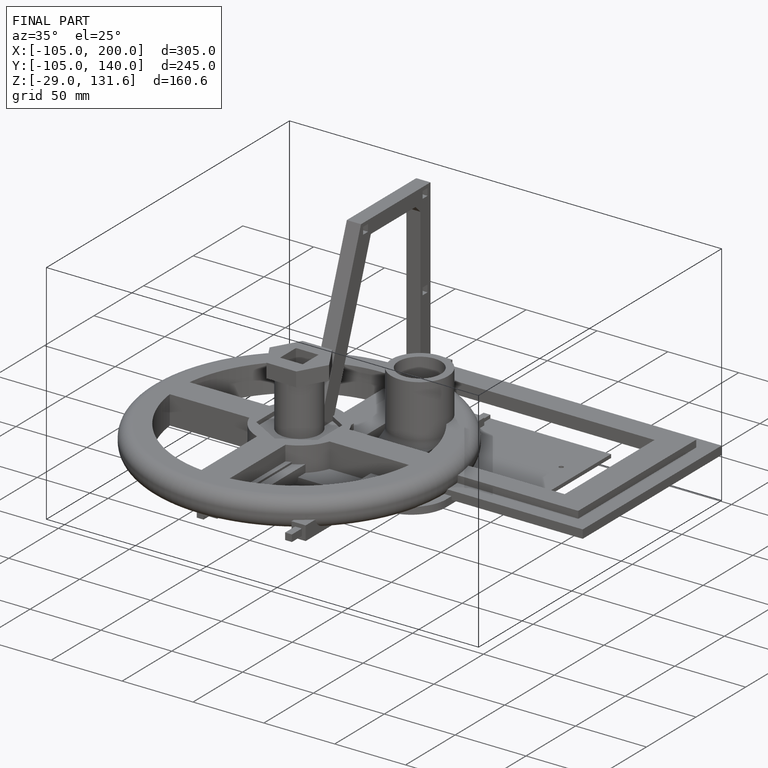
[diagram: finished part — iso view with bounding-box wireframe]
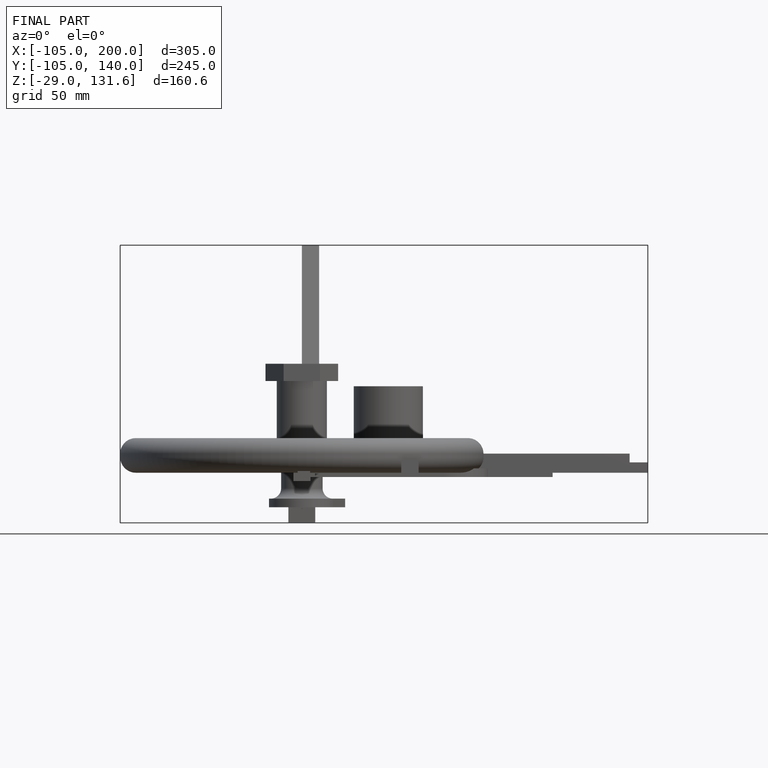
[diagram: finished part — front view with bounding-box wireframe]
